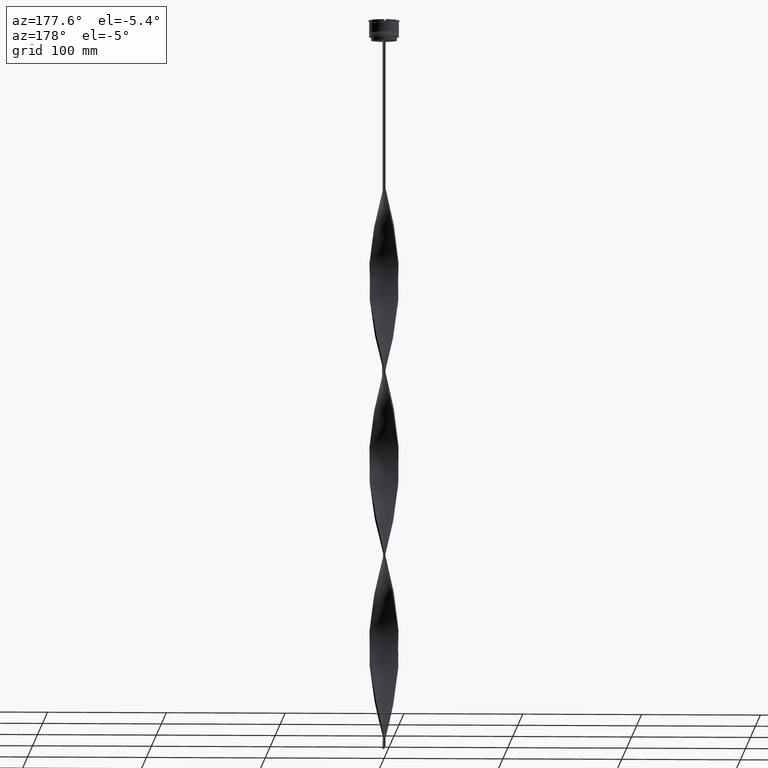
[diagram: clean part render]
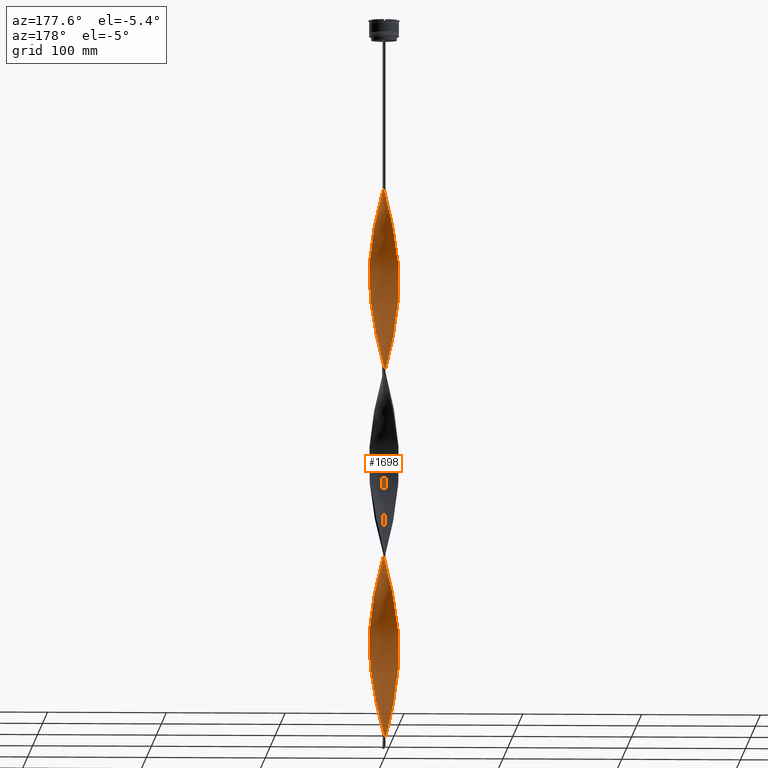
[diagram: same view with one face highlighted and labeled with its STEP entity id]
A machine part, auxiliary view. The second image highlights one B-rep face of the part: STEP entity #1698.
In plain terms, the highlighted face is a freeform B-spline surface patch.
Its self-contained STEP definition (entity closure, byte-faithful):
#8 = CARTESIAN_POINT ( 'NONE',  ( -6.740552907874695521, -10.55355136890620216, -422.6000000000000227 ) ) ;
#15 = CARTESIAN_POINT ( 'NONE',  ( -11.36854588750133388, 5.309366094152151661, -202.0266666666667277 ) ) ;
#16 = CARTESIAN_POINT ( 'NONE',  ( -12.41912662004790313, 1.605550994275040999, -366.6800000000000068 ) ) ;
#23 = CARTESIAN_POINT ( 'NONE',  ( -12.11996919947063134, -3.149420042465479241, -236.2000000000000171 ) ) ;
#35 = CARTESIAN_POINT ( 'NONE',  ( -9.644549487540052368, 8.025949731984795221, -338.7200000000000273 ) ) ;
#45 = CARTESIAN_POINT ( 'NONE',  ( 12.31811391348432316, -2.386896213156298963, -518.9066666666665242 ) ) ;
#48 = CARTESIAN_POINT ( 'NONE',  ( -5.298889272974661502, -11.34611265908963595, -279.6933333333333280 ) ) ;
#57 = CARTESIAN_POINT ( 'NONE',  ( -12.42824121570641083, -1.533401540437625332, -379.1066666666666833 ) ) ;
#63 = CARTESIAN_POINT ( 'NONE',  ( 12.41912662004790313, 1.605550994275047660, -385.3199999999999932 ) ) ;
#64 = CARTESIAN_POINT ( 'NONE',  ( 0.03643334067061888837, 12.54718600044023979, -605.8933333333335440 ) ) ;
#70 = CARTESIAN_POINT ( 'NONE',  ( 4.585052370405608535, 11.67949051451277320, -438.1333333333334394 ) ) ;
#83 = CARTESIAN_POINT ( 'NONE',  ( -1.536433340670619652, -12.45281399955976553, -295.2266666666667447 ) ) ;
#84 = CARTESIAN_POINT ( 'NONE',  ( 7.954078399437126023, -9.671873490467488566, -484.7333333333333485 ) ) ;
#93 = CARTESIAN_POINT ( 'NONE',  ( 10.57441756647771136, 6.753880147568771086, -407.0666666666666629 ) ) ;
#96 = ORIENTED_EDGE ( 'NONE', *, *, #934, .F. ) ;
#113 = CARTESIAN_POINT ( 'NONE',  ( 8.010112353542551134, -9.625518172214162504, -335.6133333333334008 ) ) ;
#115 = CARTESIAN_POINT ( 'NONE',  ( -0.7500000000000042188, 12.50000000000000000, -609.0000000000000000 ) ) ;
#123 = CARTESIAN_POINT ( 'NONE',  ( 1.536433340670621206, 12.45281399955976553, -450.5600000000000023 ) ) ;
#136 = CARTESIAN_POINT ( 'NONE',  ( 9.690996458280338288, 7.969804989054245503, -562.4000000000000909 ) ) ;
#141 = CARTESIAN_POINT ( 'NONE',  ( 6.076579735155671180, -10.97763101221075743, -326.2933333333333508 ) ) ;
#142 = CARTESIAN_POINT ( 'NONE',  ( 11.92182448545694129, -3.911943871774654635, -512.6933333333333849 ) ) ;
#148 = CARTESIAN_POINT ( 'NONE',  ( -3.904224544142286035, 11.89829948811665083, -472.3066666666667288 ) ) ;
#163 = CARTESIAN_POINT ( 'NONE',  ( -12.52471466338928074, 0.7514828798033548196, -531.3333333333335986 ) ) ;
#171 = CARTESIAN_POINT ( 'NONE',  ( 12.11996919947063311, 3.149420042465475245, -391.5333333333334167 ) ) ;
#184 = CARTESIAN_POINT ( 'NONE',  ( 11.36854588750133388, 5.309366094152153437, -549.9733333333334713 ) ) ;
#192 = CARTESIAN_POINT ( 'NONE',  ( -7.345575697064968601, -10.17230168627752107, -581.0400000000000773 ) ) ;
#201 = CARTESIAN_POINT ( 'NONE',  ( 7.954078399437126023, -9.671873490467488566, -174.0666666666666629 ) ) ;
#214 = CARTESIAN_POINT ( 'NONE',  ( 4.585052370405608535, 11.67949051451277320, -438.1333333333334394 ) ) ;
#215 = CARTESIAN_POINT ( 'NONE',  ( 9.103565294674670128, -8.598697513321127417, -180.2800000000000296 ) ) ;
#219 = CARTESIAN_POINT ( 'NONE',  ( 9.103565294674670128, -8.598697513321127417, -180.2800000000000296 ) ) ;
#232 = CARTESIAN_POINT ( 'NONE',  ( -5.364690916238543217, 11.31514875612458226, -478.5200000000000387 ) ) ;
#233 = CARTESIAN_POINT ( 'NONE',  ( 10.10948352700888542, -7.389914939776779157, -186.4933333333333394 ) ) ;
#238 = CARTESIAN_POINT ( 'NONE',  ( 11.62967262449904915, -4.643620855213893783, -198.9200000000000159 ) ) ;
#257 = CARTESIAN_POINT ( 'NONE',  ( 1.536433340670622316, -12.45281399955976553, -146.1066666666667118 ) ) ;
#266 = CARTESIAN_POINT ( 'NONE',  ( -8.562581101809282558, -9.171445294657461389, -574.8266666666665969 ) ) ;
#293 = CARTESIAN_POINT ( 'NONE',  ( 10.95596916500943863, -6.064588993110946014, -192.7066666666667061 ) ) ;
#297 = DIRECTION ( 'NONE',  ( 0.000000000000000000, 1.000000000000000000, 0.000000000000000000 ) ) ;
#305 = CARTESIAN_POINT ( 'NONE',  ( 12.42824121570641083, 1.533401540437621557, -223.7733333333333405 ) ) ;
#314 = CARTESIAN_POINT ( 'NONE',  ( -3.835060960407161712, 11.92077209873424870, -310.7600000000000477 ) ) ;
#319 = CARTESIAN_POINT ( 'NONE',  ( 2.382186218714214210, -12.29380692948152820, -310.7600000000000477 ) ) ;
#329 = CARTESIAN_POINT ( 'NONE',  ( -11.65644370790820972, -4.576004816908206152, -391.5333333333334167 ) ) ;
#337 = CARTESIAN_POINT ( 'NONE',  ( -5.364690916238543217, 11.31514875612458226, -167.8533333333333530 ) ) ;
#340 = CARTESIAN_POINT ( 'NONE',  ( -3.155646990963147935, -12.14393247619489813, -438.1333333333334394 ) ) ;
#346 = CARTESIAN_POINT ( 'NONE',  ( 5.364690916238544105, -11.31514875612458226, -323.1866666666667243 ) ) ;
#357 = CARTESIAN_POINT ( 'NONE',  ( 0.8225793935679426294, 12.49543369160420347, -292.1200000000000614 ) ) ;
#364 = CARTESIAN_POINT ( 'NONE',  ( 0.8225793935679426294, 12.49543369160420347, -292.1200000000000614 ) ) ;
#370 = CARTESIAN_POINT ( 'NONE',  ( -10.57441756647771847, -6.753880147568761316, -251.7333333333334338 ) ) ;
#380 = CARTESIAN_POINT ( 'NONE',  ( -9.103565294674670128, 8.598697513321127417, -335.6133333333334008 ) ) ;
#385 = CARTESIAN_POINT ( 'NONE',  ( -8.010112353542551134, 9.625518172214162504, -180.2800000000000296 ) ) ;
#386 = CARTESIAN_POINT ( 'NONE',  ( -8.562581101809289663, 9.171445294657457836, -332.5066666666668311 ) ) ;
#401 = CARTESIAN_POINT ( 'NONE',  ( -6.679150936304340647, 10.59251824497200900, -323.1866666666667243 ) ) ;
#409 = CARTESIAN_POINT ( 'NONE',  ( -2.382186218714211545, 12.29380692948152820, -155.4266666666666765 ) ) ;
#410 = CARTESIAN_POINT ( 'NONE',  ( -2.310751445539662274, 12.30743384125774575, -304.5466666666666811 ) ) ;
#417 = CARTESIAN_POINT ( 'NONE',  ( -2.382186218714211545, 12.29380692948152820, -155.4266666666666765 ) ) ;
#429 = CARTESIAN_POINT ( 'NONE',  ( 0.03643334067061888837, 12.54718600044023979, -295.2266666666667447 ) ) ;
#437 = CARTESIAN_POINT ( 'NONE',  ( 3.155646990963159482, -12.14393247619489813, -313.8666666666666742 ) ) ;
#438 = CARTESIAN_POINT ( 'NONE',  ( 3.155646990963152376, 12.14393247619489813, -593.4666666666666970 ) ) ;
#445 = CARTESIAN_POINT ( 'NONE',  ( 5.298889272974663278, 11.34611265908963595, -435.0266666666667561 ) ) ;
#453 = CARTESIAN_POINT ( 'NONE',  ( 12.13805464816931412, 3.078981870368077356, -540.6533333333334213 ) ) ;
#456 = B_SPLINE_CURVE_WITH_KNOTS ( 'NONE', 3,
 ( #478, #504, #4222, #2270 ),
 .UNSPECIFIED., .F., .F.,
 ( 4, 4 ),
 ( 0.000000000000000000, 1.000000000000000000 ),
 .UNSPECIFIED. ) ;
#461 = CARTESIAN_POINT ( 'NONE',  ( -7.345575697064968601, -10.17230168627752107, -270.3733333333333348 ) ) ;
#470 = CARTESIAN_POINT ( 'NONE',  ( 11.62967262449904915, 4.643620855213893783, -397.7466666666666697 ) ) ;
#478 = CARTESIAN_POINT ( 'NONE',  ( -0.7499999999999962252, -12.50000000000000000, -609.0000000000000000 ) ) ;
#479 = CARTESIAN_POINT ( 'NONE',  ( 11.94434152831508911, 3.842643539664265084, -543.7599999999999909 ) ) ;
#484 = CARTESIAN_POINT ( 'NONE',  ( -9.103565294674666575, -8.598697513321130970, -261.0533333333333417 ) ) ;
#485 = CARTESIAN_POINT ( 'NONE',  ( 5.364690916238542329, 11.31514875612458226, -584.1466666666666470 ) ) ;
#492 = CARTESIAN_POINT ( 'NONE',  ( 11.33752076354115523, 5.375297838653137816, -400.8533333333334099 ) ) ;
#504 = CARTESIAN_POINT ( 'NONE',  ( -0.7499999999999988898, -4.166666666666667851, -609.0000000000000000 ) ) ;
#505 = CARTESIAN_POINT ( 'NONE',  ( 12.33176776802354446, 2.315320201071887407, -537.5466666666667379 ) ) ;
#511 = CARTESIAN_POINT ( 'NONE',  ( -11.92182448545694129, -3.911943871774655967, -239.3066666666667288 ) ) ;
#513 = CARTESIAN_POINT ( 'NONE',  ( 2.382186218714211989, 12.29380692948152820, -596.5733333333333803 ) ) ;
#519 = CARTESIAN_POINT ( 'NONE',  ( 0.7500000000000002220, 12.50000000000000000, -453.6666666666667425 ) ) ;
#530 = CARTESIAN_POINT ( 'NONE',  ( 10.95596916500943863, -6.064588993110946014, -503.3733333333334485 ) ) ;
#536 = CARTESIAN_POINT ( 'NONE',  ( -9.644549487540050592, -8.025949731984796998, -257.9466666666666583 ) ) ;
#537 = CARTESIAN_POINT ( 'NONE',  ( 9.153347542385848357, 8.545684803940464036, -565.5066666666666606 ) ) ;
#542 = CARTESIAN_POINT ( 'NONE',  ( 11.94434152831509088, -3.842643539664260199, -363.5733333333334372 ) ) ;
#552 = CARTESIAN_POINT ( 'NONE',  ( 11.33752076354116056, -5.375297838653129823, -506.4800000000001319 ) ) ;
#559 = CARTESIAN_POINT ( 'NONE',  ( -12.31811391348432316, -2.386896213156300295, -543.7599999999999909 ) ) ;
#564 = CARTESIAN_POINT ( 'NONE',  ( 6.012726175543713580, -11.01273480366649871, -164.7466666666667265 ) ) ;
#581 = CARTESIAN_POINT ( 'NONE',  ( -10.95596916500943685, -6.064588993110949566, -559.2933333333334076 ) ) ;
#583 = CARTESIAN_POINT ( 'NONE',  ( 3.085069550408702010, -12.16205368295573130, -152.3200000000000500 ) ) ;
#591 = CARTESIAN_POINT ( 'NONE',  ( -2.310751445539660054, -12.30743384125774575, -602.7866666666667470 ) ) ;
#603 = CARTESIAN_POINT ( 'NONE',  ( -12.52013932661148310, -0.8242057753937852560, -537.5466666666667379 ) ) ;
#605 = CARTESIAN_POINT ( 'NONE',  ( 12.52471466338928074, 0.7514828798033589274, -220.6666666666667140 ) ) ;
#611 = CARTESIAN_POINT ( 'NONE',  ( -11.62967262449904915, -4.643620855213893783, -553.0800000000000409 ) ) ;
#625 = CARTESIAN_POINT ( 'NONE',  ( -1.536433340670619652, -12.45281399955976553, -605.8933333333335440 ) ) ;
#634 = CARTESIAN_POINT ( 'NONE',  ( 9.690996458280338288, 7.969804989054246391, -251.7333333333334338 ) ) ;
#651 = CARTESIAN_POINT ( 'NONE',  ( -10.15222897254094114, 7.331080881363969404, -503.3733333333334485 ) ) ;
#661 = CARTESIAN_POINT ( 'NONE',  ( -12.11996919947063134, -3.149420042465479241, -546.8666666666666742 ) ) ;
#673 = EDGE_CURVE ( 'NONE', #4452, #4715, #3626, .T. ) ;
#682 = CARTESIAN_POINT ( 'NONE',  ( 12.52242699500038015, -0.03636144779521242182, -217.5600000000000307 ) ) ;
#687 = CARTESIAN_POINT ( 'NONE',  ( -9.153347542385848357, 8.545684803940464036, -186.4933333333333394 ) ) ;
#688 = CARTESIAN_POINT ( 'NONE',  ( -9.153347542385844804, -8.545684803940465812, -410.1733333333334031 ) ) ;
#693 = CARTESIAN_POINT ( 'NONE',  ( -0.8225793935679445168, 12.49543369160420347, -149.2133333333333383 ) ) ;
#707 = CARTESIAN_POINT ( 'NONE',  ( -8.562581101809287887, 9.171445294657457836, -332.5066666666667743 ) ) ;
#715 = CARTESIAN_POINT ( 'NONE',  ( -4.585052370405619193, 11.67949051451277143, -313.8666666666666742 ) ) ;
#720 = CARTESIAN_POINT ( 'NONE',  ( -11.33752076354115701, -5.375297838653134264, -245.5200000000000387 ) ) ;
#732 = CARTESIAN_POINT ( 'NONE',  ( 6.076579735155670292, 10.97763101221075743, -270.3733333333333348 ) ) ;
#741 = CARTESIAN_POINT ( 'NONE',  ( 6.076579735155669404, 10.97763101221075921, -270.3733333333333348 ) ) ;
#747 = CARTESIAN_POINT ( 'NONE',  ( -6.076579735155669404, 10.97763101221075921, -170.9600000000000080 ) ) ;
#759 = CARTESIAN_POINT ( 'NONE',  ( -3.904224544142285147, -11.89829948811665261, -435.0266666666667561 ) ) ;
#760 = CARTESIAN_POINT ( 'NONE',  ( 0.7500000000000002220, -12.50000000000000000, -143.0000000000000284 ) ) ;
#763 = CARTESIAN_POINT ( 'NONE',  ( -3.155646990963155485, 12.14393247619489813, -158.5333333333333883 ) ) ;
#764 = CARTESIAN_POINT ( 'NONE',  ( -11.33752076354115879, 5.375297838653132487, -351.1466666666667606 ) ) ;
#770 = CARTESIAN_POINT ( 'NONE',  ( -5.364690916238543217, 11.31514875612458226, -167.8533333333333530 ) ) ;
#778 = CARTESIAN_POINT ( 'NONE',  ( 0.7500000000000002220, 12.50000000000000000, -143.0000000000000284 ) ) ;
#780 = CARTESIAN_POINT ( 'NONE',  ( -1.608725446465268050, -12.44368138276816538, -444.3466666666668061 ) ) ;
#787 = CARTESIAN_POINT ( 'NONE',  ( -12.11996919947063134, 3.149420042465479241, -360.4666666666666970 ) ) ;
#793 = CARTESIAN_POINT ( 'NONE',  ( -3.904224544142286035, 11.89829948811665083, -161.6400000000000148 ) ) ;
#802 = CARTESIAN_POINT ( 'NONE',  ( -6.012726175543711804, 11.01273480366649871, -320.0800000000000978 ) ) ;
#809 = CARTESIAN_POINT ( 'NONE',  ( 10.10948352700888186, 7.389914939776782710, -410.1733333333334031 ) ) ;
#810 = CARTESIAN_POINT ( 'NONE',  ( 12.13805464816931412, 3.078981870368077356, -540.6533333333334213 ) ) ;
#818 = CARTESIAN_POINT ( 'NONE',  ( 6.740552907874707067, -10.55355136890619683, -329.4000000000000341 ) ) ;
#828 = CARTESIAN_POINT ( 'NONE',  ( 0.8225793935679426294, 12.49543369160420347, -602.7866666666667470 ) ) ;
#836 = CARTESIAN_POINT ( 'NONE',  ( -12.41912662004790313, -1.605550994275043664, -229.9866666666666788 ) ) ;
#837 = CARTESIAN_POINT ( 'NONE',  ( 9.644549487540052368, -8.025949731984795221, -494.0533333333333985 ) ) ;
#844 = CARTESIAN_POINT ( 'NONE',  ( 2.310751445539656057, 12.30743384125774753, -447.4533333333333758 ) ) ;
#854 = CARTESIAN_POINT ( 'NONE',  ( 1.536433340670622316, -12.45281399955976553, -456.7733333333334258 ) ) ;
#859 = CARTESIAN_POINT ( 'NONE',  ( -6.012726175543710028, -11.01273480366650048, -276.5866666666667584 ) ) ;
#865 = CARTESIAN_POINT ( 'NONE',  ( 12.13805464816931767, -3.078981870368074691, -366.6800000000000068 ) ) ;
#880 = CARTESIAN_POINT ( 'NONE',  ( 1.608725446465269382, -12.44368138276816360, -307.6533333333333644 ) ) ;
#881 = CARTESIAN_POINT ( 'NONE',  ( 9.690996458280338288, 7.969804989054246391, -562.4000000000000909 ) ) ;
#887 = CARTESIAN_POINT ( 'NONE',  ( 12.33176776802354802, -2.315320201071879858, -369.7866666666666333 ) ) ;
#900 = CARTESIAN_POINT ( 'NONE',  ( 11.62967262449904915, -4.643620855213893783, -509.5866666666666447 ) ) ;
#906 = CARTESIAN_POINT ( 'NONE',  ( 3.904224544142290032, -11.89829948811664906, -316.9733333333333576 ) ) ;
#908 = CARTESIAN_POINT ( 'NONE',  ( 6.012726175543713580, -11.01273480366649871, -475.4133333333333553 ) ) ;
#915 = CARTESIAN_POINT ( 'NONE',  ( -11.36854588750133388, 5.309366094152151661, -512.6933333333333849 ) ) ;
#926 = CARTESIAN_POINT ( 'NONE',  ( 5.298889272974663278, -11.34611265908963418, -472.3066666666667288 ) ) ;
#931 = CARTESIAN_POINT ( 'NONE',  ( -10.61346148680155288, 6.692356773673692416, -506.4800000000001319 ) ) ;
#934 = EDGE_CURVE ( 'NONE', #4715, #3259, #456, .T. ) ;
#938 = CARTESIAN_POINT ( 'NONE',  ( 12.11996919947063134, -3.149420042465478353, -205.1333333333333542 ) ) ;
#953 = CARTESIAN_POINT ( 'NONE',  ( -8.615698626491365530, 9.121564618826681681, -494.0533333333333985 ) ) ;
#959 = CARTESIAN_POINT ( 'NONE',  ( -11.33752076354115701, -5.375297838653134264, -556.1866666666668380 ) ) ;
#976 = CARTESIAN_POINT ( 'NONE',  ( -8.562581101809280781, -9.171445294657461389, -574.8266666666667106 ) ) ;
#979 = CARTESIAN_POINT ( 'NONE',  ( 10.57441756647771847, -6.753880147568761316, -189.6000000000000227 ) ) ;
#987 = CARTESIAN_POINT ( 'NONE',  ( 11.33752076354116056, -5.375297838653129823, -195.8133333333333610 ) ) ;
#1001 = CARTESIAN_POINT ( 'NONE',  ( -2.310751445539660054, -12.30743384125774575, -602.7866666666667470 ) ) ;
#1009 = CARTESIAN_POINT ( 'NONE',  ( 12.52013932661148665, -0.8242057753937837017, -214.4533333333333758 ) ) ;
#1020 = CARTESIAN_POINT ( 'NONE',  ( 6.679150936304339758, 10.59251824497200900, -428.8133333333333894 ) ) ;
#1029 = CARTESIAN_POINT ( 'NONE',  ( -12.52013932661148488, -0.8242057753937852560, -537.5466666666667379 ) ) ;
#1048 = CARTESIAN_POINT ( 'NONE',  ( 12.52013932661148488, -0.8242057753937837017, -214.4533333333333758 ) ) ;
#1057 = CARTESIAN_POINT ( 'NONE',  ( -5.298889272974667719, 11.34611265908963240, -316.9733333333333576 ) ) ;
#1073 = CARTESIAN_POINT ( 'NONE',  ( -1.536433340670622094, 12.45281399955976553, -301.4400000000000546 ) ) ;
#1080 = CARTESIAN_POINT ( 'NONE',  ( -10.10948352700888542, 7.389914939776777381, -341.8266666666667106 ) ) ;
#1084 = CARTESIAN_POINT ( 'NONE',  ( -10.95596916500943685, -6.064588993110949566, -248.6266666666666936 ) ) ;
#1093 = CARTESIAN_POINT ( 'NONE',  ( -9.690996458280331183, -7.969804989054253497, -407.0666666666666629 ) ) ;
#1097 = CARTESIAN_POINT ( 'NONE',  ( -6.740552907874703514, 10.55355136890620038, -174.0666666666666629 ) ) ;
#1098 = CARTESIAN_POINT ( 'NONE',  ( -0.03643334067062039411, -12.54718600044023979, -450.5600000000000023 ) ) ;
#1103 = CARTESIAN_POINT ( 'NONE',  ( -11.65644370790820794, 4.576004816908208817, -205.1333333333333542 ) ) ;
#1117 = CARTESIAN_POINT ( 'NONE',  ( -2.310751445539662274, 12.30743384125774575, -304.5466666666666811 ) ) ;
#1125 = CARTESIAN_POINT ( 'NONE',  ( 4.652802097321414365, 11.65266650003840887, -276.5866666666667584 ) ) ;
#1131 = CARTESIAN_POINT ( 'NONE',  ( -9.103565294674666575, -8.598697513321130970, -261.0533333333333417 ) ) ;
#1144 = CARTESIAN_POINT ( 'NONE',  ( -2.382186218714207548, -12.29380692948152998, -441.2400000000000091 ) ) ;
#1153 = CARTESIAN_POINT ( 'NONE',  ( -12.52471466338928074, -0.7514828798033545976, -376.0000000000000568 ) ) ;
#1159 = CARTESIAN_POINT ( 'NONE',  ( -8.562581101809282558, -9.171445294657461389, -264.1600000000000819 ) ) ;
#1167 = CARTESIAN_POINT ( 'NONE',  ( -12.52013932661148488, 0.8242057753937772624, -369.7866666666666902 ) ) ;
#1173 = CARTESIAN_POINT ( 'NONE',  ( -6.679150936304338870, -10.59251824497200900, -273.4800000000000750 ) ) ;
#1174 = CARTESIAN_POINT ( 'NONE',  ( 10.99100368715144072, 6.000861433912924703, -553.0800000000000409 ) ) ;
#1181 = CARTESIAN_POINT ( 'NONE',  ( 0.8225793935679449609, -12.49543369160420347, -304.5466666666666811 ) ) ;
#1190 = CARTESIAN_POINT ( 'NONE',  ( 4.585052370405615640, -11.67949051451277143, -469.2000000000001023 ) ) ;
#1197 = CARTESIAN_POINT ( 'NONE',  ( -0.7499999999999962252, -12.50000000000000000, -298.3333333333333144 ) ) ;
#1198 = CARTESIAN_POINT ( 'NONE',  ( 1.608725446465266717, 12.44368138276816538, -599.6799999999999500 ) ) ;
#1206 = CARTESIAN_POINT ( 'NONE',  ( 3.085069550408702455, 12.16205368295573130, -444.3466666666667493 ) ) ;
#1224 = CARTESIAN_POINT ( 'NONE',  ( 10.99100368715144427, -6.000861433912917597, -354.2533333333333871 ) ) ;
#1230 = CARTESIAN_POINT ( 'NONE',  ( 8.562581101809284334, 9.171445294657461389, -419.4933333333333394 ) ) ;
#1239 = EDGE_CURVE ( 'NONE', #2189, #3259, #1409, .T. ) ;
#1240 = CARTESIAN_POINT ( 'NONE',  ( 12.52471466338928074, 0.7514828798033589274, -531.3333333333335986 ) ) ;
#1246 = CARTESIAN_POINT ( 'NONE',  ( 12.52013932661148488, 0.8242057753937834796, -382.2133333333334235 ) ) ;
#1252 = CARTESIAN_POINT ( 'NONE',  ( -5.364690916238543217, 11.31514875612458226, -478.5200000000000387 ) ) ;
#1265 = CARTESIAN_POINT ( 'NONE',  ( -10.95596916500943685, -6.064588993110949566, -248.6266666666666936 ) ) ;
#1266 = CARTESIAN_POINT ( 'NONE',  ( 8.562581101809286110, -9.171445294657459613, -487.8400000000000887 ) ) ;
#1273 = CARTESIAN_POINT ( 'NONE',  ( -9.690996458280338288, 7.969804989054246391, -500.2666666666666515 ) ) ;
#1287 = CARTESIAN_POINT ( 'NONE',  ( 3.835060960407158603, -11.92077209873424870, -466.0933333333333621 ) ) ;
#1293 = CARTESIAN_POINT ( 'NONE',  ( -12.11996919947063134, -3.149420042465479241, -546.8666666666666742 ) ) ;
#1301 = CARTESIAN_POINT ( 'NONE',  ( -10.15222897254094114, 7.331080881363969404, -503.3733333333334485 ) ) ;
#1316 = CARTESIAN_POINT ( 'NONE',  ( -11.62967262449904915, -4.643620855213893783, -553.0800000000000409 ) ) ;
#1321 = EDGE_LOOP ( 'NONE', ( #3045, #1458, #96, #2017 ) ) ;
#1322 = CARTESIAN_POINT ( 'NONE',  ( -3.085069550408701122, -12.16205368295573130, -599.6799999999999500 ) ) ;
#1336 = CARTESIAN_POINT ( 'NONE',  ( -9.644549487540050592, -8.025949731984796998, -568.6133333333334576 ) ) ;
#1337 = CARTESIAN_POINT ( 'NONE',  ( 9.644549487540052368, -8.025949731984795221, -183.3866666666666845 ) ) ;
#1342 = CARTESIAN_POINT ( 'NONE',  ( -6.012726175543710916, -11.01273480366650048, -587.2533333333335577 ) ) ;
#1359 = CARTESIAN_POINT ( 'NONE',  ( -3.835060960407159047, -11.92077209873424870, -596.5733333333333803 ) ) ;
#1367 = CARTESIAN_POINT ( 'NONE',  ( 10.99100368715144072, 6.000861433912924703, -242.4133333333333553 ) ) ;
#1381 = CARTESIAN_POINT ( 'NONE',  ( -3.904224544142286035, 11.89829948811665083, -472.3066666666667288 ) ) ;
#1383 = CARTESIAN_POINT ( 'NONE',  ( 12.33176776802354446, 2.315320201071887407, -226.8800000000000523 ) ) ;
#1391 = CARTESIAN_POINT ( 'NONE',  ( 11.65644370790820794, 4.576004816908210593, -236.2000000000000171 ) ) ;
#1409 =( BOUNDED_CURVE ( )  B_SPLINE_CURVE ( 2, ( #3639, #257, #3957, #583, #4710, #2924, #3278, #3225, #4344, #4760, #1800, #2461, #215, #1337, #233, #979, #2486, #4414, #2100, #1731, #3979, #3596, #3249, #1048, #682, #605, #305, #1383, #2902, #4804, #4387, #2525, #4021, #2151, #1434, #4075, #3756, #1925, #1554, #3777, #2576, #732, #2223, #1827, #3730, #1851, #1482, #3420, #357, #429, #4173, #1073, #1117, #3443, #3395, #4442, #1507, #802, #401, #4535, #1897, #707, #380, #35, #2197, #3000, #4098, #2650, #4464, #1532, #3048, #3351, #3803, #1167, #2673, #2296, #57, #3707, #3374, #1874, #329, #4485, #4833, #1461, #4852, #1093, #2979, #4126, #2623, #2600, #8, #4510, #2250, #3024, #759, #4148, #1144, #780, #2271, #1609, #1577, #854, #2020, #1653, #1287, #1190, #926, #2328, #3927, #2803, #2352, #3124, #4294, #2431, #3856, #2729, #530, #552, #900, #2775, #3167, #4269, #2042, #4608, #1631, #1240, #3562, #505, #453, #479, #2751, #184, #3830, #1972, #3145, #136, #4658, #2407, #2377, #3069, #1948, #4557, #3521, #2699, #3465, #4196, #3904, #4224, #828, #3494, #3880 ),
 .UNSPECIFIED., .F., .T. ) 
 B_SPLINE_CURVE_WITH_KNOTS ( ( 3, 2, 2, 2, 2, 2, 2, 2, 2, 2, 2, 2, 2, 2, 2, 2, 2, 2, 2, 2, 2, 2, 2, 2, 2, 2, 2, 2, 2, 2, 2, 2, 2, 2, 2, 2, 2, 2, 2, 2, 2, 2, 2, 2, 2, 2, 2, 2, 2, 2, 2, 2, 2, 2, 2, 2, 2, 2, 2, 2, 2, 2, 2, 2, 2, 2, 2, 2, 2, 2, 2, 2, 2, 2, 2, 3 ),
 ( 0.000000000000000000, 0.01000000000000000021, 0.02000000000000000042, 0.02999999999999999889, 0.04000000000000000083, 0.05000000000000000971, 0.05999999999999999778, 0.07000000000000000666, 0.08000000000000000167, 0.09000000000000001055, 0.1000000000000000194, 0.1100000000000000006, 0.1199999999999999956, 0.1300000000000000044, 0.1400000000000000133, 0.1499999999999999944, 0.1600000000000000033, 0.1700000000000000122, 0.1800000000000000211, 0.1900000000000000300, 0.2000000000000000389, 0.2099999999999999922, 0.2200000000000000011, 0.2300000000000000100, 0.2399999999999999911, 0.2500000000000000000, 0.2600000000000000089, 0.2700000000000000178, 0.2800000000000000266, 0.2899999999999999800, 0.2999999999999999889, 0.3099999999999999978, 0.3200000000000000067, 0.3300000000000000155, 0.3400000000000000244, 0.3499999999999999223, 0.3600000000000000422, 0.3699999999999999400, 0.3800000000000000600, 0.3899999999999999578, 0.4000000000000000777, 0.4099999999999999756, 0.4199999999999999845, 0.4299999999999999933, 0.4400000000000000022, 0.4500000000000000111, 0.4600000000000000200, 0.4699999999999999734, 0.4799999999999999822, 0.4899999999999999911, 0.5000000000000000000, 0.5100000000000000089, 0.5200000000000000178, 0.5300000000000000266, 0.5400000000000000355, 0.5500000000000000444, 0.5600000000000000533, 0.5699999999999999512, 0.5799999999999999600, 0.5899999999999999689, 0.5999999999999999778, 0.6099999999999999867, 0.6199999999999999956, 0.6300000000000000044, 0.6400000000000000133, 0.6500000000000000222, 0.6600000000000000311, 0.6700000000000000400, 0.6800000000000000488, 0.6899999999999999467, 0.6999999999999998446, 0.7099999999999999645, 0.7200000000000000844, 0.7299999999999999822, 0.7399999999999998801, 0.7500000000000000000 ),
 .UNSPECIFIED. ) 
 CURVE ( )  GEOMETRIC_REPRESENTATION_ITEM ( )  RATIONAL_B_SPLINE_CURVE ( ( 1.000000000000000000, 0.9980267284282715590, 1.000000000000000000, 0.9980267284282715590, 1.000000000000000000, 0.9980267284282715590, 1.000000000000000000, 0.9980267284282715590, 1.000000000000000000, 0.9980267284282715590, 1.000000000000000000, 0.9980267284282715590, 1.000000000000000000, 0.9980267284282715590, 1.000000000000000000, 0.9980267284282715590, 1.000000000000000000, 0.9980267284282715590, 1.000000000000000000, 0.9980267284282715590, 1.000000000000000000, 0.9980267284282715590, 1.000000000000000000, 0.9980267284282715590, 1.000000000000000000, 0.9980267284282715590, 1.000000000000000000, 0.9980267284282715590, 1.000000000000000000, 0.9980267284282715590, 1.000000000000000000, 0.9980267284282715590, 1.000000000000000000, 0.9980267284282715590, 1.000000000000000000, 0.9980267284282715590, 1.000000000000000000, 0.9980267284282715590, 1.000000000000000000, 0.9980267284282715590, 1.000000000000000000, 0.9980267284282715590, 1.000000000000000000, 0.9980267284282715590, 1.000000000000000000, 0.9980267284282715590, 1.000000000000000000, 0.9980267284282715590, 1.000000000000000000, 0.9980267284282715590, 1.000000000000000000, 0.9980267284282715590, 1.000000000000000000, 0.9980267284282715590, 1.000000000000000000, 0.9980267284282715590, 1.000000000000000000, 0.9980267284282715590, 1.000000000000000000, 0.9980267284282715590, 1.000000000000000000, 0.9980267284282715590, 1.000000000000000000, 0.9980267284282715590, 1.000000000000000000, 0.9980267284282715590, 1.000000000000000000, 0.9980267284282715590, 1.000000000000000000, 0.9980267284282715590, 1.000000000000000000, 0.9980267284282715590, 1.000000000000000000, 0.9980267284282715590, 1.000000000000000000, 0.9980267284282715590, 1.000000000000000000, 0.9980267284282715590, 1.000000000000000000, 0.9980267284282715590, 1.000000000000000000, 0.9980267284282715590, 1.000000000000000000, 0.9980267284282715590, 1.000000000000000000, 0.9980267284282715590, 1.000000000000000000, 0.9980267284282715590, 1.000000000000000000, 0.9980267284282715590, 1.000000000000000000, 0.9980267284282715590, 1.000000000000000000, 0.9980267284282715590, 1.000000000000000000, 0.9980267284282715590, 1.000000000000000000, 0.9980267284282715590, 1.000000000000000000, 0.9980267284282715590, 1.000000000000000000, 0.9980267284282715590, 1.000000000000000000, 0.9980267284282715590, 1.000000000000000000, 0.9980267284282715590, 1.000000000000000000, 0.9980267284282715590, 1.000000000000000000, 0.9980267284282715590, 1.000000000000000000, 0.9980267284282715590, 1.000000000000000000, 0.9980267284282715590, 1.000000000000000000, 0.9980267284282715590, 1.000000000000000000, 0.9980267284282715590, 1.000000000000000000, 0.9980267284282715590, 1.000000000000000000, 0.9980267284282715590, 1.000000000000000000, 0.9980267284282715590, 1.000000000000000000, 0.9980267284282715590, 1.000000000000000000, 0.9980267284282715590, 1.000000000000000000, 0.9980267284282715590, 1.000000000000000000, 0.9980267284282715590, 1.000000000000000000, 0.9980267284282715590, 1.000000000000000000, 0.9980267284282715590, 1.000000000000000000, 0.9980267284282715590, 1.000000000000000000, 0.9980267284282715590, 1.000000000000000000, 0.9980267284282715590, 1.000000000000000000, 0.9980267284282715590, 1.000000000000000000, 0.9980267284282715590, 1.000000000000000000, 0.9980267284282715590, 1.000000000000000000, 0.9980267284282715590, 1.000000000000000000 ) ) 
 REPRESENTATION_ITEM ( '' )  );
#1415 = CARTESIAN_POINT ( 'NONE',  ( -9.103565294674670128, 8.598697513321127417, -335.6133333333334008 ) ) ;
#1434 = CARTESIAN_POINT ( 'NONE',  ( 10.15222897254093937, 7.331080881363972068, -248.6266666666666936 ) ) ;
#1441 = CARTESIAN_POINT ( 'NONE',  ( -12.13805464816931767, 3.078981870368073359, -211.3466666666666924 ) ) ;
#1444 = CARTESIAN_POINT ( 'NONE',  ( -10.95596916500943863, 6.064588993110942461, -348.0400000000000205 ) ) ;
#1452 = CARTESIAN_POINT ( 'NONE',  ( 3.904224544142290032, -11.89829948811664906, -316.9733333333333576 ) ) ;
#1458 = ORIENTED_EDGE ( 'NONE', *, *, #1239, .T. ) ;
#1461 = CARTESIAN_POINT ( 'NONE',  ( -10.61346148680154755, -6.692356773673698633, -400.8533333333334099 ) ) ;
#1467 = CARTESIAN_POINT ( 'NONE',  ( -0.8225793935679387436, -12.49543369160420170, -447.4533333333333758 ) ) ;
#1482 = CARTESIAN_POINT ( 'NONE',  ( 2.382186218714211989, 12.29380692948152820, -285.9066666666666947 ) ) ;
#1489 = CARTESIAN_POINT ( 'NONE',  ( -12.33176776802354802, -2.315320201071886075, -382.2133333333333667 ) ) ;
#1494 = CARTESIAN_POINT ( 'NONE',  ( -10.61346148680155466, 6.692356773673692416, -195.8133333333333610 ) ) ;
#1507 = CARTESIAN_POINT ( 'NONE',  ( -5.298889272974667719, 11.34611265908963240, -316.9733333333333576 ) ) ;
#1513 = CARTESIAN_POINT ( 'NONE',  ( -11.65644370790820794, 4.576004816908208817, -205.1333333333333542 ) ) ;
#1515 = CARTESIAN_POINT ( 'NONE',  ( 8.010112353542547581, 9.625518172214162504, -261.0533333333333417 ) ) ;
#1522 = CARTESIAN_POINT ( 'NONE',  ( -3.155646990963155485, 12.14393247619489813, -158.5333333333333883 ) ) ;
#1532 = CARTESIAN_POINT ( 'NONE',  ( -11.92182448545694129, 3.911943871774654191, -357.3600000000000705 ) ) ;
#1538 = CARTESIAN_POINT ( 'NONE',  ( -8.562581101809280781, -9.171445294657461389, -264.1600000000000819 ) ) ;
#1539 = CARTESIAN_POINT ( 'NONE',  ( 6.076579735155669404, 10.97763101221075921, -581.0400000000000773 ) ) ;
#1546 = CARTESIAN_POINT ( 'NONE',  ( -0.7499999999999962252, -12.50000000000000000, -298.3333333333333144 ) ) ;
#1554 = CARTESIAN_POINT ( 'NONE',  ( 8.010112353542547581, 9.625518172214162504, -261.0533333333333417 ) ) ;
#1560 = CARTESIAN_POINT ( 'NONE',  ( 0.8225793935679449609, -12.49543369160420347, -304.5466666666666811 ) ) ;
#1569 = CARTESIAN_POINT ( 'NONE',  ( 12.52013932661148665, 0.8242057753937834796, -382.2133333333333667 ) ) ;
#1577 = CARTESIAN_POINT ( 'NONE',  ( 0.7500000000000002220, -12.50000000000000000, -453.6666666666667425 ) ) ;
#1584 = CARTESIAN_POINT ( 'NONE',  ( 8.615698626491365530, -9.121564618826681681, -338.7200000000000273 ) ) ;
#1585 = CARTESIAN_POINT ( 'NONE',  ( 12.42824121570641083, 1.533401540437621557, -534.4400000000000546 ) ) ;
#1595 = CARTESIAN_POINT ( 'NONE',  ( 11.36854588750133388, -5.309366094152151661, -357.3600000000001273 ) ) ;
#1609 = CARTESIAN_POINT ( 'NONE',  ( -0.03643334067062040105, -12.54718600044023979, -450.5600000000000023 ) ) ;
#1615 = CARTESIAN_POINT ( 'NONE',  ( 12.52471466338928074, -0.7514828798033591495, -376.0000000000000568 ) ) ;
#1616 = CARTESIAN_POINT ( 'NONE',  ( 8.615698626491363754, 9.121564618826683457, -568.6133333333333439 ) ) ;
#1621 = CARTESIAN_POINT ( 'NONE',  ( 12.52242699500038015, 0.03636144779521762599, -379.1066666666666833 ) ) ;
#1631 = CARTESIAN_POINT ( 'NONE',  ( 12.52242699500038015, -0.03636144779521242182, -528.2266666666666879 ) ) ;
#1638 = CARTESIAN_POINT ( 'NONE',  ( 6.740552907874707067, -10.55355136890619683, -329.4000000000000341 ) ) ;
#1639 = CARTESIAN_POINT ( 'NONE',  ( 12.33176776802354624, 2.315320201071887851, -537.5466666666667379 ) ) ;
#1644 = CARTESIAN_POINT ( 'NONE',  ( -6.076579735155669404, 10.97763101221075921, -481.6266666666667788 ) ) ;
#1653 = CARTESIAN_POINT ( 'NONE',  ( 3.085069550408702010, -12.16205368295573130, -462.9866666666667356 ) ) ;
#1659 = CARTESIAN_POINT ( 'NONE',  ( -12.52242699500038015, -0.03636144779521361531, -534.4400000000000546 ) ) ;
#1667 = CARTESIAN_POINT ( 'NONE',  ( 6.679150936304339758, 10.59251824497200900, -428.8133333333333894 ) ) ;
#1687 = CARTESIAN_POINT ( 'NONE',  ( -6.012726175543710028, -11.01273480366650048, -587.2533333333335577 ) ) ;
#1695 = CARTESIAN_POINT ( 'NONE',  ( -12.52471466338928074, 0.7514828798033548196, -531.3333333333334849 ) ) ;
#1698 = ADVANCED_FACE ( 'NONE', ( #4820 ), #4151, .T. ) ;
#1711 = CARTESIAN_POINT ( 'NONE',  ( -4.652802097321417030, 11.65266650003840709, -475.4133333333333553 ) ) ;
#1717 = CARTESIAN_POINT ( 'NONE',  ( 7.345575697064968601, -10.17230168627752107, -170.9600000000000080 ) ) ;
#1730 = CARTESIAN_POINT ( 'NONE',  ( -11.36854588750133388, 5.309366094152151661, -512.6933333333334986 ) ) ;
#1731 = CARTESIAN_POINT ( 'NONE',  ( 11.92182448545694129, -3.911943871774654191, -202.0266666666667277 ) ) ;
#1737 = CARTESIAN_POINT ( 'NONE',  ( -12.52242699500038015, -0.03636144779521361531, -534.4400000000000546 ) ) ;
#1766 = CARTESIAN_POINT ( 'NONE',  ( 11.92182448545694129, -3.911943871774654635, -202.0266666666667277 ) ) ;
#1790 = CARTESIAN_POINT ( 'NONE',  ( 12.13805464816931412, 3.078981870368077356, -229.9866666666666788 ) ) ;
#1800 = CARTESIAN_POINT ( 'NONE',  ( 7.954078399437126023, -9.671873490467488566, -174.0666666666666629 ) ) ;
#1808 = CARTESIAN_POINT ( 'NONE',  ( -11.92182448545694129, 3.911943871774654635, -357.3600000000001273 ) ) ;
#1813 = CARTESIAN_POINT ( 'NONE',  ( -7.404526080593738513, 10.12947172560163800, -177.1733333333333462 ) ) ;
#1827 = CARTESIAN_POINT ( 'NONE',  ( 4.652802097321414365, 11.65266650003840887, -276.5866666666667584 ) ) ;
#1836 = CARTESIAN_POINT ( 'NONE',  ( -2.382186218714207548, -12.29380692948152998, -441.2400000000000091 ) ) ;
#1842 = CARTESIAN_POINT ( 'NONE',  ( -12.13805464816931767, 3.078981870368073359, -211.3466666666666924 ) ) ;
#1851 = CARTESIAN_POINT ( 'NONE',  ( 3.155646990963151932, 12.14393247619489813, -282.8000000000000682 ) ) ;
#1858 = CARTESIAN_POINT ( 'NONE',  ( -6.012726175543712692, 11.01273480366649871, -320.0800000000000978 ) ) ;
#1864 = CARTESIAN_POINT ( 'NONE',  ( -3.085069550408701122, -12.16205368295573130, -289.0133333333333212 ) ) ;
#1874 = CARTESIAN_POINT ( 'NONE',  ( -11.94434152831508911, -3.842643539664265973, -388.4266666666667334 ) ) ;
#1880 = CARTESIAN_POINT ( 'NONE',  ( 2.382186218714211989, 12.29380692948152820, -285.9066666666666947 ) ) ;
#1886 = CARTESIAN_POINT ( 'NONE',  ( -12.52242699500038015, -0.03636144779521361531, -223.7733333333333405 ) ) ;
#1897 = CARTESIAN_POINT ( 'NONE',  ( -7.954078399437128688, 9.671873490467485013, -329.4000000000000341 ) ) ;
#1905 = CARTESIAN_POINT ( 'NONE',  ( -10.61346148680155288, 6.692356773673692416, -195.8133333333333610 ) ) ;
#1907 = CARTESIAN_POINT ( 'NONE',  ( -6.679150936304340647, 10.59251824497200900, -323.1866666666667243 ) ) ;
#1913 = CARTESIAN_POINT ( 'NONE',  ( -10.99100368715144072, 6.000861433912922926, -198.9200000000000159 ) ) ;
#1925 = CARTESIAN_POINT ( 'NONE',  ( 8.615698626491363754, 9.121564618826683457, -257.9466666666666583 ) ) ;
#1931 = CARTESIAN_POINT ( 'NONE',  ( 11.65644370790820794, -4.576004816908210593, -360.4666666666666970 ) ) ;
#1933 = CARTESIAN_POINT ( 'NONE',  ( 12.41912662004790313, -1.605550994275039667, -522.0133333333334349 ) ) ;
#1940 = CARTESIAN_POINT ( 'NONE',  ( 6.076579735155670292, -10.97763101221075743, -326.2933333333333508 ) ) ;
#1948 = CARTESIAN_POINT ( 'NONE',  ( 6.740552907874705291, 10.55355136890619860, -577.9333333333333940 ) ) ;
#1954 = CARTESIAN_POINT ( 'NONE',  ( 9.153347542385848357, -8.545684803940462260, -341.8266666666667106 ) ) ;
#1964 = CARTESIAN_POINT ( 'NONE',  ( 12.41912662004790313, 1.605550994275047660, -385.3199999999999932 ) ) ;
#1972 = CARTESIAN_POINT ( 'NONE',  ( 10.61346148680154933, 6.692356773673695081, -556.1866666666668380 ) ) ;
#1979 = CARTESIAN_POINT ( 'NONE',  ( 12.42824121570641083, -1.533401540437619115, -372.8933333333333735 ) ) ;
#1987 = CARTESIAN_POINT ( 'NONE',  ( 10.61346148680155288, -6.692356773673693304, -351.1466666666667606 ) ) ;
#2002 = CARTESIAN_POINT ( 'NONE',  ( 4.652802097321416142, -11.65266650003840709, -320.0800000000000978 ) ) ;
#2003 = CARTESIAN_POINT ( 'NONE',  ( 0.8225793935679426294, 12.49543369160420347, -602.7866666666667470 ) ) ;
#2008 = CARTESIAN_POINT ( 'NONE',  ( -2.382186218714211545, 12.29380692948152820, -466.0933333333333621 ) ) ;
#2017 = ORIENTED_EDGE ( 'NONE', *, *, #673, .F. ) ;
#2020 = CARTESIAN_POINT ( 'NONE',  ( 2.310751445539661830, -12.30743384125774575, -459.8799999999999955 ) ) ;
#2026 = CARTESIAN_POINT ( 'NONE',  ( 11.33752076354115523, 5.375297838653137816, -400.8533333333334099 ) ) ;
#2027 = CARTESIAN_POINT ( 'NONE',  ( 6.740552907874705291, 10.55355136890619860, -577.9333333333333940 ) ) ;
#2032 = CARTESIAN_POINT ( 'NONE',  ( 12.52471466338928074, -0.7514828798033591495, -376.0000000000000568 ) ) ;
#2042 = CARTESIAN_POINT ( 'NONE',  ( 12.41912662004790313, -1.605550994275039667, -522.0133333333334349 ) ) ;
#2049 = CARTESIAN_POINT ( 'NONE',  ( -7.954078399437126912, -9.671873490467486789, -577.9333333333333940 ) ) ;
#2058 = CARTESIAN_POINT ( 'NONE',  ( -3.835060960407159047, -11.92077209873424870, -596.5733333333333803 ) ) ;
#2078 = CARTESIAN_POINT ( 'NONE',  ( -4.585052370405612088, -11.67949051451277143, -593.4666666666666970 ) ) ;
#2086 = CARTESIAN_POINT ( 'NONE',  ( 8.562581101809286110, -9.171445294657459613, -177.1733333333333462 ) ) ;
#2099 = CARTESIAN_POINT ( 'NONE',  ( -11.65644370790820794, 4.576004816908208817, -515.8000000000000682 ) ) ;
#2100 = CARTESIAN_POINT ( 'NONE',  ( 11.62967262449904915, -4.643620855213893783, -198.9200000000000159 ) ) ;
#2107 = CARTESIAN_POINT ( 'NONE',  ( -12.33176776802354802, 2.315320201071886519, -525.1200000000001182 ) ) ;
#2121 = CARTESIAN_POINT ( 'NONE',  ( -0.7499999999999962252, -12.50000000000000000, -609.0000000000000000 ) ) ;
#2129 = CARTESIAN_POINT ( 'NONE',  ( 2.310751445539661830, -12.30743384125774575, -149.2133333333333383 ) ) ;
#2137 = CARTESIAN_POINT ( 'NONE',  ( 0.7500000000000002220, -12.50000000000000000, -143.0000000000000284 ) ) ;
#2150 = CARTESIAN_POINT ( 'NONE',  ( -11.94434152831508911, 3.842643539664264196, -518.9066666666666379 ) ) ;
#2151 = CARTESIAN_POINT ( 'NONE',  ( 10.61346148680154933, 6.692356773673695081, -245.5200000000000387 ) ) ;
#2161 = CARTESIAN_POINT ( 'NONE',  ( 4.585052370405616529, -11.67949051451277143, -158.5333333333333883 ) ) ;
#2166 = LINE ( 'NONE', #2137, #3799 ) ;
#2182 = CARTESIAN_POINT ( 'NONE',  ( -1.608725446465267606, 12.44368138276816538, -152.3200000000000500 ) ) ;
#2184 = CARTESIAN_POINT ( 'NONE',  ( -8.615698626491365530, -9.121564618826681681, -413.2800000000000864 ) ) ;
#2187 = CARTESIAN_POINT ( 'NONE',  ( -9.690996458280338288, 7.969804989054246391, -189.6000000000000227 ) ) ;
#2189 = VERTEX_POINT ( 'NONE', #760 ) ;
#2197 = CARTESIAN_POINT ( 'NONE',  ( -10.10948352700888542, 7.389914939776777381, -341.8266666666667106 ) ) ;
#2205 = CARTESIAN_POINT ( 'NONE',  ( -12.42824121570641083, -1.533401540437625332, -379.1066666666666833 ) ) ;
#2211 = CARTESIAN_POINT ( 'NONE',  ( 4.652802097321416142, -11.65266650003840709, -320.0800000000000978 ) ) ;
#2223 = CARTESIAN_POINT ( 'NONE',  ( 5.364690916238542329, 11.31514875612458226, -273.4800000000000750 ) ) ;
#2231 = CARTESIAN_POINT ( 'NONE',  ( -6.076579735155670292, 10.97763101221075743, -170.9600000000000364 ) ) ;
#2233 = CARTESIAN_POINT ( 'NONE',  ( 5.364690916238542329, 11.31514875612458226, -273.4800000000000750 ) ) ;
#2241 = CARTESIAN_POINT ( 'NONE',  ( -12.31811391348432316, -2.386896213156299851, -233.0933333333333906 ) ) ;
#2250 = CARTESIAN_POINT ( 'NONE',  ( -5.364690916238543217, -11.31514875612458226, -428.8133333333333894 ) ) ;
#2256 = CARTESIAN_POINT ( 'NONE',  ( -11.62967262449905270, 4.643620855213886678, -354.2533333333333871 ) ) ;
#2262 = CARTESIAN_POINT ( 'NONE',  ( -9.153347542385848357, 8.545684803940464036, -186.4933333333333394 ) ) ;
#2270 = CARTESIAN_POINT ( 'NONE',  ( -0.7500000000000042188, 12.50000000000000000, -609.0000000000000000 ) ) ;
#2271 = CARTESIAN_POINT ( 'NONE',  ( -0.8225793935679387436, -12.49543369160420170, -447.4533333333333758 ) ) ;
#2277 = CARTESIAN_POINT ( 'NONE',  ( -4.652802097321417030, 11.65266650003840709, -164.7466666666666981 ) ) ;
#2278 = CARTESIAN_POINT ( 'NONE',  ( -10.15222897254093937, -7.331080881363972068, -403.9600000000000364 ) ) ;
#2283 = CARTESIAN_POINT ( 'NONE',  ( -8.615698626491365530, 9.121564618826681681, -183.3866666666666845 ) ) ;
#2296 = CARTESIAN_POINT ( 'NONE',  ( -12.52471466338928074, -0.7514828798033545976, -376.0000000000000568 ) ) ;
#2303 = CARTESIAN_POINT ( 'NONE',  ( 9.644549487540052368, 8.025949731984795221, -413.2800000000000864 ) ) ;
#2305 = CARTESIAN_POINT ( 'NONE',  ( 4.652802097321414365, 11.65266650003840887, -587.2533333333335577 ) ) ;
#2315 = CARTESIAN_POINT ( 'NONE',  ( 7.345575697064964160, 10.17230168627752107, -425.7066666666667629 ) ) ;
#2328 = CARTESIAN_POINT ( 'NONE',  ( 6.012726175543712692, -11.01273480366649871, -475.4133333333333553 ) ) ;
#2335 = CARTESIAN_POINT ( 'NONE',  ( -11.62967262449904915, -4.643620855213893783, -242.4133333333333553 ) ) ;
#2336 = CARTESIAN_POINT ( 'NONE',  ( 12.52471466338928074, 0.7514828798033589274, -531.3333333333334849 ) ) ;
#2344 = CARTESIAN_POINT ( 'NONE',  ( -0.8225793935679445168, 12.49543369160420347, -459.8799999999999955 ) ) ;
#2352 = CARTESIAN_POINT ( 'NONE',  ( 7.954078399437126023, -9.671873490467488566, -484.7333333333333485 ) ) ;
#2358 = CARTESIAN_POINT ( 'NONE',  ( -3.835060960407159047, -11.92077209873424870, -285.9066666666666947 ) ) ;
#2366 = CARTESIAN_POINT ( 'NONE',  ( 12.42824121570641083, -1.533401540437619115, -372.8933333333333735 ) ) ;
#2377 = CARTESIAN_POINT ( 'NONE',  ( 8.010112353542547581, 9.625518172214162504, -571.7200000000000273 ) ) ;
#2384 = CARTESIAN_POINT ( 'NONE',  ( 2.382186218714214210, -12.29380692948152820, -310.7600000000000477 ) ) ;
#2385 = CARTESIAN_POINT ( 'NONE',  ( 10.57441756647771847, -6.753880147568761316, -500.2666666666666515 ) ) ;
#2394 = CARTESIAN_POINT ( 'NONE',  ( 6.012726175543707363, 11.01273480366650048, -431.9200000000000728 ) ) ;
#2407 = CARTESIAN_POINT ( 'NONE',  ( 8.615698626491363754, 9.121564618826683457, -568.6133333333334576 ) ) ;
#2414 = CARTESIAN_POINT ( 'NONE',  ( -11.33752076354115701, -5.375297838653134264, -245.5200000000000387 ) ) ;
#2415 = CARTESIAN_POINT ( 'NONE',  ( 10.95596916500943863, -6.064588993110946014, -503.3733333333334485 ) ) ;
#2419 = CARTESIAN_POINT ( 'NONE',  ( -11.65644370790820794, 4.576004816908208817, -515.8000000000000682 ) ) ;
#2431 = CARTESIAN_POINT ( 'NONE',  ( 9.644549487540052368, -8.025949731984795221, -494.0533333333333985 ) ) ;
#2437 = CARTESIAN_POINT ( 'NONE',  ( -8.010112353542551134, 9.625518172214162504, -490.9466666666667152 ) ) ;
#2443 = CARTESIAN_POINT ( 'NONE',  ( 10.10948352700888542, -7.389914939776779157, -186.4933333333333394 ) ) ;
#2455 = EDGE_CURVE ( 'NONE', #2189, #4452, #2166, .T. ) ;
#2460 = CARTESIAN_POINT ( 'NONE',  ( -2.382186218714211545, 12.29380692948152820, -466.0933333333333621 ) ) ;
#2461 = CARTESIAN_POINT ( 'NONE',  ( 8.562581101809284334, -9.171445294657459613, -177.1733333333333462 ) ) ;
#2467 = CARTESIAN_POINT ( 'NONE',  ( -0.7499999999999962252, -12.50000000000000000, -609.0000000000000000 ) ) ;
#2483 = CARTESIAN_POINT ( 'NONE',  ( -7.404526080593738513, 10.12947172560163800, -487.8400000000000887 ) ) ;
#2486 = CARTESIAN_POINT ( 'NONE',  ( 10.95596916500943863, -6.064588993110946014, -192.7066666666667061 ) ) ;
#2491 = CARTESIAN_POINT ( 'NONE',  ( 12.31811391348432316, -2.386896213156298963, -208.2400000000000659 ) ) ;
#2501 = CARTESIAN_POINT ( 'NONE',  ( 0.7500000000000002220, 12.50000000000000000, -453.6666666666667425 ) ) ;
#2510 = CARTESIAN_POINT ( 'NONE',  ( -10.95596916500943685, -6.064588993110949566, -559.2933333333334076 ) ) ;
#2524 = CARTESIAN_POINT ( 'NONE',  ( -6.740552907874703514, 10.55355136890620038, -484.7333333333333485 ) ) ;
#2525 = CARTESIAN_POINT ( 'NONE',  ( 11.36854588750133388, 5.309366094152153437, -239.3066666666667288 ) ) ;
#2533 = CARTESIAN_POINT ( 'NONE',  ( 3.085069550408702010, -12.16205368295573130, -152.3200000000000500 ) ) ;
#2558 = CARTESIAN_POINT ( 'NONE',  ( -10.15222897254094114, 7.331080881363969404, -192.7066666666667061 ) ) ;
#2560 = CARTESIAN_POINT ( 'NONE',  ( 0.03643334067061888837, 12.54718600044023979, -295.2266666666667447 ) ) ;
#2576 = CARTESIAN_POINT ( 'NONE',  ( 6.740552907874705291, 10.55355136890619860, -267.2666666666667084 ) ) ;
#2582 = CARTESIAN_POINT ( 'NONE',  ( -3.904224544142286035, 11.89829948811665083, -161.6400000000000148 ) ) ;
#2584 = CARTESIAN_POINT ( 'NONE',  ( -5.364690916238543217, -11.31514875612458226, -428.8133333333333894 ) ) ;
#2589 = CARTESIAN_POINT ( 'NONE',  ( -4.585052370405612976, -11.67949051451277143, -282.8000000000000682 ) ) ;
#2600 = CARTESIAN_POINT ( 'NONE',  ( -7.404526080593736737, -10.12947172560163978, -419.4933333333333962 ) ) ;
#2606 = CARTESIAN_POINT ( 'NONE',  ( 6.740552907874705291, 10.55355136890619860, -267.2666666666667084 ) ) ;
#2610 = CARTESIAN_POINT ( 'NONE',  ( -12.52013932661148488, -0.8242057753937852560, -226.8800000000000523 ) ) ;
#2623 = CARTESIAN_POINT ( 'NONE',  ( -8.010112353542544028, -9.625518172214164281, -416.3866666666666561 ) ) ;
#2632 = CARTESIAN_POINT ( 'NONE',  ( -10.99100368715144072, -6.000861433912922926, -397.7466666666666697 ) ) ;
#2640 = CARTESIAN_POINT ( 'NONE',  ( -1.608725446465267606, 12.44368138276816538, -152.3200000000000500 ) ) ;
#2650 = CARTESIAN_POINT ( 'NONE',  ( -11.33752076354115879, 5.375297838653132487, -351.1466666666667038 ) ) ;
#2656 = CARTESIAN_POINT ( 'NONE',  ( -0.8225793935679445168, 12.49543369160420347, -149.2133333333333383 ) ) ;
#2657 = CARTESIAN_POINT ( 'NONE',  ( -11.65644370790820972, -4.576004816908206152, -391.5333333333334167 ) ) ;
#2664 = CARTESIAN_POINT ( 'NONE',  ( -7.345575697064968601, -10.17230168627752107, -270.3733333333333348 ) ) ;
#2673 = CARTESIAN_POINT ( 'NONE',  ( -12.52242699500038015, 0.03636144779521122833, -372.8933333333333735 ) ) ;
#2679 = CARTESIAN_POINT ( 'NONE',  ( -4.585052370405612088, -11.67949051451277143, -282.8000000000000682 ) ) ;
#2680 = CARTESIAN_POINT ( 'NONE',  ( 8.010112353542547581, 9.625518172214162504, -571.7200000000000273 ) ) ;
#2686 = CARTESIAN_POINT ( 'NONE',  ( -12.42824121570641083, 1.533401540437620225, -217.5600000000000307 ) ) ;
#2699 = CARTESIAN_POINT ( 'NONE',  ( 4.652802097321414365, 11.65266650003840887, -587.2533333333335577 ) ) ;
#2706 = CARTESIAN_POINT ( 'NONE',  ( 8.562581101809282558, 9.171445294657461389, -419.4933333333333962 ) ) ;
#2708 = CARTESIAN_POINT ( 'NONE',  ( 0.7500000000000002220, -12.50000000000000000, -453.6666666666667425 ) ) ;
#2717 = CARTESIAN_POINT ( 'NONE',  ( 8.010112353542551134, -9.625518172214162504, -335.6133333333334008 ) ) ;
#2729 = CARTESIAN_POINT ( 'NONE',  ( 10.57441756647771847, -6.753880147568761316, -500.2666666666666515 ) ) ;
#2735 = CARTESIAN_POINT ( 'NONE',  ( 11.94434152831509088, -3.842643539664260199, -363.5733333333334372 ) ) ;
#2741 = CARTESIAN_POINT ( 'NONE',  ( 8.615698626491365530, -9.121564618826681681, -338.7200000000000273 ) ) ;
#2751 = CARTESIAN_POINT ( 'NONE',  ( 11.65644370790820794, 4.576004816908210593, -546.8666666666666742 ) ) ;
#2757 = CARTESIAN_POINT ( 'NONE',  ( 12.31811391348432316, 2.386896213156301183, -388.4266666666667334 ) ) ;
#2759 = CARTESIAN_POINT ( 'NONE',  ( 11.33752076354116056, -5.375297838653129823, -506.4800000000001887 ) ) ;
#2765 = CARTESIAN_POINT ( 'NONE',  ( 10.99100368715144427, -6.000861433912917597, -354.2533333333333871 ) ) ;
#2775 = CARTESIAN_POINT ( 'NONE',  ( 11.92182448545694129, -3.911943871774654191, -512.6933333333334986 ) ) ;
#2781 = CARTESIAN_POINT ( 'NONE',  ( 11.92182448545693774, 3.911943871774660408, -394.6400000000000432 ) ) ;
#2782 = CARTESIAN_POINT ( 'NONE',  ( 4.585052370405616529, -11.67949051451277143, -469.2000000000001023 ) ) ;
#2790 = CARTESIAN_POINT ( 'NONE',  ( -10.61346148680155466, 6.692356773673692416, -506.4800000000001887 ) ) ;
#2803 = CARTESIAN_POINT ( 'NONE',  ( 7.345575697064968601, -10.17230168627752107, -481.6266666666667788 ) ) ;
#2809 = CARTESIAN_POINT ( 'NONE',  ( -11.33752076354115701, -5.375297838653134264, -556.1866666666668380 ) ) ;
#2818 = CARTESIAN_POINT ( 'NONE',  ( -12.31811391348432316, -2.386896213156299851, -543.7599999999999909 ) ) ;
#2833 = CARTESIAN_POINT ( 'NONE',  ( 5.298889272974663278, 11.34611265908963595, -435.0266666666667561 ) ) ;
#2839 = CARTESIAN_POINT ( 'NONE',  ( -1.536433340670619652, -12.45281399955976553, -605.8933333333335440 ) ) ;
#2853 = CARTESIAN_POINT ( 'NONE',  ( -0.8225793935679445168, 12.49543369160420347, -459.8799999999999955 ) ) ;
#2863 = CARTESIAN_POINT ( 'NONE',  ( 5.298889272974663278, -11.34611265908963418, -161.6400000000000148 ) ) ;
#2881 = CARTESIAN_POINT ( 'NONE',  ( -11.92182448545694129, -3.911943871774655967, -549.9733333333334713 ) ) ;
#2889 = CARTESIAN_POINT ( 'NONE',  ( 10.61346148680155110, 6.692356773673695081, -245.5200000000000387 ) ) ;
#2901 = CARTESIAN_POINT ( 'NONE',  ( 7.954078399437118918, 9.671873490467493895, -422.6000000000000227 ) ) ;
#2902 = CARTESIAN_POINT ( 'NONE',  ( 12.13805464816931412, 3.078981870368077356, -229.9866666666666788 ) ) ;
#2911 = CARTESIAN_POINT ( 'NONE',  ( 11.36854588750133388, 5.309366094152153437, -239.3066666666667288 ) ) ;
#2924 = CARTESIAN_POINT ( 'NONE',  ( 4.585052370405615640, -11.67949051451277143, -158.5333333333333883 ) ) ;
#2933 = CARTESIAN_POINT ( 'NONE',  ( -12.13805464816931412, -3.078981870368081353, -385.3199999999999932 ) ) ;
#2964 = CARTESIAN_POINT ( 'NONE',  ( -6.740552907874695521, -10.55355136890620216, -422.6000000000000227 ) ) ;
#2969 = CARTESIAN_POINT ( 'NONE',  ( -9.644549487540050592, -8.025949731984796998, -257.9466666666666583 ) ) ;
#2979 = CARTESIAN_POINT ( 'NONE',  ( -9.153347542385844804, -8.545684803940465812, -410.1733333333334031 ) ) ;
#2984 = CARTESIAN_POINT ( 'NONE',  ( 7.404526080593734960, 10.12947172560163978, -264.1600000000000819 ) ) ;
#2988 = CARTESIAN_POINT ( 'NONE',  ( -11.62967262449904915, -4.643620855213893783, -242.4133333333333553 ) ) ;
#3000 = CARTESIAN_POINT ( 'NONE',  ( -10.57441756647771669, 6.753880147568764869, -344.9333333333334508 ) ) ;
#3004 = CARTESIAN_POINT ( 'NONE',  ( -11.94434152831508911, -3.842643539664266417, -388.4266666666667334 ) ) ;
#3010 = CARTESIAN_POINT ( 'NONE',  ( -12.52471466338928074, 0.7514828798033548196, -220.6666666666666856 ) ) ;
#3024 = CARTESIAN_POINT ( 'NONE',  ( -4.652802097321410812, -11.65266650003840887, -431.9200000000000728 ) ) ;
#3030 = CARTESIAN_POINT ( 'NONE',  ( -11.94434152831508911, 3.842643539664264196, -208.2400000000000659 ) ) ;
#3034 = CARTESIAN_POINT ( 'NONE',  ( -12.52013932661148665, 0.8242057753937772624, -369.7866666666666333 ) ) ;
#3041 = CARTESIAN_POINT ( 'NONE',  ( -4.652802097321417030, 11.65266650003840709, -164.7466666666667265 ) ) ;
#3045 = ORIENTED_EDGE ( 'NONE', *, *, #2455, .F. ) ;
#3048 = CARTESIAN_POINT ( 'NONE',  ( -12.11996919947063134, 3.149420042465479241, -360.4666666666666970 ) ) ;
#3054 = CARTESIAN_POINT ( 'NONE',  ( -10.57441756647771847, -6.753880147568761316, -251.7333333333334338 ) ) ;
#3055 = CARTESIAN_POINT ( 'NONE',  ( 3.835060960407158603, -11.92077209873424870, -466.0933333333333621 ) ) ;
#3061 = CARTESIAN_POINT ( 'NONE',  ( 0.03643334067062148351, -12.54718600044023979, -301.4400000000000546 ) ) ;
#3069 = CARTESIAN_POINT ( 'NONE',  ( 7.404526080593734960, 10.12947172560163978, -574.8266666666667106 ) ) ;
#3075 = CARTESIAN_POINT ( 'NONE',  ( 11.36854588750133388, -5.309366094152151661, -357.3600000000000705 ) ) ;
#3084 = CARTESIAN_POINT ( 'NONE',  ( 10.15222897254094470, -7.331080881363965851, -348.0400000000000205 ) ) ;
#3101 = CARTESIAN_POINT ( 'NONE',  ( -10.10948352700888542, -7.389914939776780933, -254.8400000000000034 ) ) ;
#3103 = CARTESIAN_POINT ( 'NONE',  ( 10.15222897254093937, 7.331080881363972068, -559.2933333333334076 ) ) ;
#3111 = CARTESIAN_POINT ( 'NONE',  ( -3.155646990963155485, 12.14393247619489813, -469.2000000000001023 ) ) ;
#3124 = CARTESIAN_POINT ( 'NONE',  ( 8.562581101809284334, -9.171445294657459613, -487.8400000000000887 ) ) ;
#3129 = CARTESIAN_POINT ( 'NONE',  ( 12.52242699500038015, 0.03636144779521762599, -379.1066666666666833 ) ) ;
#3135 = CARTESIAN_POINT ( 'NONE',  ( -0.03643334067062180964, 12.54718600044023979, -456.7733333333334258 ) ) ;
#3145 = CARTESIAN_POINT ( 'NONE',  ( 10.15222897254093937, 7.331080881363972068, -559.2933333333334076 ) ) ;
#3151 = CARTESIAN_POINT ( 'NONE',  ( 10.15222897254094470, -7.331080881363965851, -348.0400000000000205 ) ) ;
#3153 = CARTESIAN_POINT ( 'NONE',  ( 3.085069550408702010, -12.16205368295573130, -462.9866666666666788 ) ) ;
#3158 = CARTESIAN_POINT ( 'NONE',  ( -6.740552907874703514, 10.55355136890620038, -484.7333333333333485 ) ) ;
#3161 = CARTESIAN_POINT ( 'NONE',  ( -0.7500000000000042188, 12.50000000000000000, -609.0000000000000000 ) ) ;
#3167 = CARTESIAN_POINT ( 'NONE',  ( 12.11996919947063134, -3.149420042465478353, -515.8000000000000682 ) ) ;
#3176 = CARTESIAN_POINT ( 'NONE',  ( -12.33176776802354624, 2.315320201071886075, -525.1200000000001182 ) ) ;
#3184 = CARTESIAN_POINT ( 'NONE',  ( -4.652802097321417030, 11.65266650003840709, -475.4133333333333553 ) ) ;
#3202 = CARTESIAN_POINT ( 'NONE',  ( -5.298889272974661502, -11.34611265908963595, -590.3600000000000136 ) ) ;
#3209 = CARTESIAN_POINT ( 'NONE',  ( -9.103565294674666575, -8.598697513321130970, -571.7200000000000273 ) ) ;
#3224 = CARTESIAN_POINT ( 'NONE',  ( -9.153347542385848357, 8.545684803940464036, -497.1600000000000250 ) ) ;
#3225 = CARTESIAN_POINT ( 'NONE',  ( 6.012726175543712692, -11.01273480366649871, -164.7466666666666981 ) ) ;
#3231 = CARTESIAN_POINT ( 'NONE',  ( 9.644549487540052368, -8.025949731984795221, -183.3866666666666845 ) ) ;
#3246 = CARTESIAN_POINT ( 'NONE',  ( -12.13805464816931767, 3.078981870368073359, -522.0133333333334349 ) ) ;
#3249 = CARTESIAN_POINT ( 'NONE',  ( 12.41912662004790313, -1.605550994275039667, -211.3466666666666924 ) ) ;
#3255 = CARTESIAN_POINT ( 'NONE',  ( 12.52242699500038015, -0.03636144779521242182, -217.5600000000000307 ) ) ;
#3259 = VERTEX_POINT ( 'NONE', #3161 ) ;
#3276 = CARTESIAN_POINT ( 'NONE',  ( 6.012726175543706475, 11.01273480366650048, -431.9200000000000728 ) ) ;
#3278 = CARTESIAN_POINT ( 'NONE',  ( 5.298889272974663278, -11.34611265908963418, -161.6400000000000148 ) ) ;
#3285 = CARTESIAN_POINT ( 'NONE',  ( 12.42824121570641083, 1.533401540437621557, -223.7733333333333405 ) ) ;
#3308 = CARTESIAN_POINT ( 'NONE',  ( -12.42824121570641083, 1.533401540437620225, -528.2266666666666879 ) ) ;
#3330 = CARTESIAN_POINT ( 'NONE',  ( -8.010112353542544028, -9.625518172214164281, -416.3866666666666561 ) ) ;
#3338 = CARTESIAN_POINT ( 'NONE',  ( 3.155646990963159038, -12.14393247619489813, -313.8666666666666742 ) ) ;
#3351 = CARTESIAN_POINT ( 'NONE',  ( -12.31811391348432494, 2.386896213156294966, -363.5733333333334372 ) ) ;
#3360 = CARTESIAN_POINT ( 'NONE',  ( -1.608725446465268050, -12.44368138276816538, -444.3466666666667493 ) ) ;
#3366 = CARTESIAN_POINT ( 'NONE',  ( -3.835060960407159047, -11.92077209873424870, -285.9066666666666947 ) ) ;
#3374 = CARTESIAN_POINT ( 'NONE',  ( -12.13805464816931412, -3.078981870368081353, -385.3199999999999932 ) ) ;
#3381 = CARTESIAN_POINT ( 'NONE',  ( -7.954078399437128688, 9.671873490467485013, -329.4000000000000341 ) ) ;
#3385 = CARTESIAN_POINT ( 'NONE',  ( -7.954078399437126912, -9.671873490467486789, -267.2666666666667084 ) ) ;
#3395 = CARTESIAN_POINT ( 'NONE',  ( -3.835060960407161712, 11.92077209873424870, -310.7600000000000477 ) ) ;
#3400 = CARTESIAN_POINT ( 'NONE',  ( -9.690996458280338288, 7.969804989054245503, -189.6000000000000227 ) ) ;
#3401 = CARTESIAN_POINT ( 'NONE',  ( -12.31811391348432494, 2.386896213156294966, -363.5733333333334372 ) ) ;
#3420 = CARTESIAN_POINT ( 'NONE',  ( 1.608725446465266717, 12.44368138276816538, -289.0133333333333212 ) ) ;
#3427 = CARTESIAN_POINT ( 'NONE',  ( 0.7500000000000002220, 12.50000000000000000, -143.0000000000000284 ) ) ;
#3429 = CARTESIAN_POINT ( 'NONE',  ( 9.153347542385848357, 8.545684803940464036, -254.8400000000000034 ) ) ;
#3434 = CARTESIAN_POINT ( 'NONE',  ( -12.33176776802354802, 2.315320201071886519, -214.4533333333333758 ) ) ;
#3443 = CARTESIAN_POINT ( 'NONE',  ( -3.085069550408703787, 12.16205368295572953, -307.6533333333333644 ) ) ;
#3449 = CARTESIAN_POINT ( 'NONE',  ( 12.33176776802354624, -2.315320201071879858, -369.7866666666666902 ) ) ;
#3450 = CARTESIAN_POINT ( 'NONE',  ( 7.404526080593734960, 10.12947172560163978, -574.8266666666665969 ) ) ;
#3458 = CARTESIAN_POINT ( 'NONE',  ( 11.92182448545693774, 3.911943871774660408, -394.6399999999999864 ) ) ;
#3465 = CARTESIAN_POINT ( 'NONE',  ( 3.904224544142283371, 11.89829948811665261, -590.3600000000000136 ) ) ;
#3471 = CARTESIAN_POINT ( 'NONE',  ( -12.11996919947063134, -3.149420042465479241, -236.2000000000000171 ) ) ;
#3472 = CARTESIAN_POINT ( 'NONE',  ( 12.52013932661148665, -0.8242057753937837017, -525.1200000000001182 ) ) ;
#3482 = CARTESIAN_POINT ( 'NONE',  ( -9.153347542385848357, 8.545684803940464036, -497.1600000000000250 ) ) ;
#3494 = CARTESIAN_POINT ( 'NONE',  ( 0.03643334067061888837, 12.54718600044023979, -605.8933333333335440 ) ) ;
#3500 = CARTESIAN_POINT ( 'NONE',  ( -7.954078399437126912, -9.671873490467486789, -267.2666666666667084 ) ) ;
#3502 = CARTESIAN_POINT ( 'NONE',  ( 11.94434152831508911, 3.842643539664265528, -543.7599999999999909 ) ) ;
#3508 = CARTESIAN_POINT ( 'NONE',  ( 10.10948352700888186, 7.389914939776782710, -410.1733333333334031 ) ) ;
#3521 = CARTESIAN_POINT ( 'NONE',  ( 5.364690916238542329, 11.31514875612458226, -584.1466666666666470 ) ) ;
#3525 = CARTESIAN_POINT ( 'NONE',  ( 5.364690916238544105, -11.31514875612458226, -323.1866666666667243 ) ) ;
#3526 = CARTESIAN_POINT ( 'NONE',  ( 2.310751445539661830, -12.30743384125774575, -459.8799999999999955 ) ) ;
#3530 = CARTESIAN_POINT ( 'NONE',  ( 7.954078399437118918, 9.671873490467493895, -422.6000000000000227 ) ) ;
#3547 = CARTESIAN_POINT ( 'NONE',  ( -2.310751445539660054, -12.30743384125774575, -292.1200000000000614 ) ) ;
#3553 = CARTESIAN_POINT ( 'NONE',  ( 9.103565294674663022, 8.598697513321132746, -416.3866666666666561 ) ) ;
#3562 = CARTESIAN_POINT ( 'NONE',  ( 12.42824121570641083, 1.533401540437621557, -534.4400000000000546 ) ) ;
#3570 = CARTESIAN_POINT ( 'NONE',  ( -12.42824121570641083, 1.533401540437620225, -528.2266666666666879 ) ) ;
#3579 = CARTESIAN_POINT ( 'NONE',  ( -7.345575697064968601, -10.17230168627752107, -581.0400000000000773 ) ) ;
#3595 = CARTESIAN_POINT ( 'NONE',  ( -6.076579735155670292, 10.97763101221075743, -481.6266666666667788 ) ) ;
#3596 = CARTESIAN_POINT ( 'NONE',  ( 12.31811391348432316, -2.386896213156298963, -208.2400000000000659 ) ) ;
#3603 = CARTESIAN_POINT ( 'NONE',  ( 1.536433340670622538, -12.45281399955976553, -146.1066666666667118 ) ) ;
#3616 = CARTESIAN_POINT ( 'NONE',  ( -1.608725446465267606, 12.44368138276816538, -462.9866666666667356 ) ) ;
#3623 = CARTESIAN_POINT ( 'NONE',  ( 10.57441756647771847, -6.753880147568761316, -189.6000000000000227 ) ) ;
#3626 =( BOUNDED_CURVE ( )  B_SPLINE_CURVE ( 2, ( #3427, #4133, #2656, #2182, #409, #763, #2582, #2277, #337, #2231, #1097, #4104, #385, #3761, #687, #3400, #2558, #1905, #3694, #15, #1513, #3030, #1441, #4448, #3783, #4421, #4203, #3813, #836, #3836, #3471, #511, #2335, #2414, #1265, #3054, #3101, #536, #484, #1538, #3500, #461, #1173, #859, #3910, #2679, #2358, #3884, #3547, #83, #1197, #4616, #1560, #880, #2384, #437, #906, #2002, #3525, #141, #1638, #3861, #113, #1584, #1954, #4590, #3151, #4639, #1224, #3075, #1931, #2735, #4229, #3449, #1979, #1615, #3129, #1246, #63, #2757, #4251, #2781, #4275, #2026, #4541, #4179, #809, #2303, #4563, #2706, #2901, #4300, #1020, #3276, #2833, #214, #4758, #4386, #4321, #4689, #2501, #3931, #2853, #3616, #2460, #4732, #1381, #1711, #232, #3595, #2524, #2483, #2437, #953, #3224, #4019, #651, #931, #3955, #1730, #2099, #2150, #3246, #3176, #3570, #163, #1659, #603, #4665, #559, #1293, #2881, #1316, #2809, #581, #4342, #4709, #1336, #3996, #976, #2049, #192, #3978, #1687, #3202, #2078, #1359, #4365, #1001, #625, #2121 ),
 .UNSPECIFIED., .F., .T. ) 
 B_SPLINE_CURVE_WITH_KNOTS ( ( 3, 2, 2, 2, 2, 2, 2, 2, 2, 2, 2, 2, 2, 2, 2, 2, 2, 2, 2, 2, 2, 2, 2, 2, 2, 2, 2, 2, 2, 2, 2, 2, 2, 2, 2, 2, 2, 2, 2, 2, 2, 2, 2, 2, 2, 2, 2, 2, 2, 2, 2, 2, 2, 2, 2, 2, 2, 2, 2, 2, 2, 2, 2, 2, 2, 2, 2, 2, 2, 2, 2, 2, 2, 2, 2, 3 ),
 ( 0.000000000000000000, 0.01000000000000000021, 0.02000000000000000042, 0.02999999999999999889, 0.04000000000000000083, 0.05000000000000000971, 0.05999999999999999778, 0.07000000000000000666, 0.08000000000000000167, 0.09000000000000001055, 0.1000000000000000194, 0.1100000000000000006, 0.1199999999999999956, 0.1300000000000000044, 0.1400000000000000133, 0.1499999999999999944, 0.1600000000000000033, 0.1700000000000000122, 0.1800000000000000211, 0.1900000000000000300, 0.2000000000000000389, 0.2099999999999999922, 0.2200000000000000011, 0.2300000000000000100, 0.2399999999999999911, 0.2500000000000000000, 0.2600000000000000089, 0.2700000000000000178, 0.2800000000000000266, 0.2899999999999999800, 0.2999999999999999889, 0.3099999999999999978, 0.3200000000000000067, 0.3300000000000000155, 0.3400000000000000244, 0.3499999999999999223, 0.3600000000000000422, 0.3699999999999999400, 0.3800000000000000600, 0.3899999999999999578, 0.4000000000000000777, 0.4099999999999999756, 0.4199999999999999845, 0.4299999999999999933, 0.4400000000000000022, 0.4500000000000000111, 0.4600000000000000200, 0.4699999999999999734, 0.4799999999999999822, 0.4899999999999999911, 0.5000000000000000000, 0.5100000000000000089, 0.5200000000000000178, 0.5300000000000000266, 0.5400000000000000355, 0.5500000000000000444, 0.5600000000000000533, 0.5699999999999999512, 0.5799999999999999600, 0.5899999999999999689, 0.5999999999999999778, 0.6099999999999999867, 0.6199999999999999956, 0.6300000000000000044, 0.6400000000000000133, 0.6500000000000000222, 0.6600000000000000311, 0.6700000000000000400, 0.6800000000000000488, 0.6899999999999999467, 0.6999999999999998446, 0.7099999999999999645, 0.7200000000000000844, 0.7299999999999999822, 0.7399999999999998801, 0.7500000000000000000 ),
 .UNSPECIFIED. ) 
 CURVE ( )  GEOMETRIC_REPRESENTATION_ITEM ( )  RATIONAL_B_SPLINE_CURVE ( ( 1.000000000000000000, 0.9980267284282715590, 1.000000000000000000, 0.9980267284282715590, 1.000000000000000000, 0.9980267284282715590, 1.000000000000000000, 0.9980267284282715590, 1.000000000000000000, 0.9980267284282715590, 1.000000000000000000, 0.9980267284282715590, 1.000000000000000000, 0.9980267284282715590, 1.000000000000000000, 0.9980267284282715590, 1.000000000000000000, 0.9980267284282715590, 1.000000000000000000, 0.9980267284282715590, 1.000000000000000000, 0.9980267284282715590, 1.000000000000000000, 0.9980267284282715590, 1.000000000000000000, 0.9980267284282715590, 1.000000000000000000, 0.9980267284282715590, 1.000000000000000000, 0.9980267284282715590, 1.000000000000000000, 0.9980267284282715590, 1.000000000000000000, 0.9980267284282715590, 1.000000000000000000, 0.9980267284282715590, 1.000000000000000000, 0.9980267284282715590, 1.000000000000000000, 0.9980267284282715590, 1.000000000000000000, 0.9980267284282715590, 1.000000000000000000, 0.9980267284282715590, 1.000000000000000000, 0.9980267284282715590, 1.000000000000000000, 0.9980267284282715590, 1.000000000000000000, 0.9980267284282715590, 1.000000000000000000, 0.9980267284282715590, 1.000000000000000000, 0.9980267284282715590, 1.000000000000000000, 0.9980267284282715590, 1.000000000000000000, 0.9980267284282715590, 1.000000000000000000, 0.9980267284282715590, 1.000000000000000000, 0.9980267284282715590, 1.000000000000000000, 0.9980267284282715590, 1.000000000000000000, 0.9980267284282715590, 1.000000000000000000, 0.9980267284282715590, 1.000000000000000000, 0.9980267284282715590, 1.000000000000000000, 0.9980267284282715590, 1.000000000000000000, 0.9980267284282715590, 1.000000000000000000, 0.9980267284282715590, 1.000000000000000000, 0.9980267284282715590, 1.000000000000000000, 0.9980267284282715590, 1.000000000000000000, 0.9980267284282715590, 1.000000000000000000, 0.9980267284282715590, 1.000000000000000000, 0.9980267284282715590, 1.000000000000000000, 0.9980267284282715590, 1.000000000000000000, 0.9980267284282715590, 1.000000000000000000, 0.9980267284282715590, 1.000000000000000000, 0.9980267284282715590, 1.000000000000000000, 0.9980267284282715590, 1.000000000000000000, 0.9980267284282715590, 1.000000000000000000, 0.9980267284282715590, 1.000000000000000000, 0.9980267284282715590, 1.000000000000000000, 0.9980267284282715590, 1.000000000000000000, 0.9980267284282715590, 1.000000000000000000, 0.9980267284282715590, 1.000000000000000000, 0.9980267284282715590, 1.000000000000000000, 0.9980267284282715590, 1.000000000000000000, 0.9980267284282715590, 1.000000000000000000, 0.9980267284282715590, 1.000000000000000000, 0.9980267284282715590, 1.000000000000000000, 0.9980267284282715590, 1.000000000000000000, 0.9980267284282715590, 1.000000000000000000, 0.9980267284282715590, 1.000000000000000000, 0.9980267284282715590, 1.000000000000000000, 0.9980267284282715590, 1.000000000000000000, 0.9980267284282715590, 1.000000000000000000, 0.9980267284282715590, 1.000000000000000000, 0.9980267284282715590, 1.000000000000000000, 0.9980267284282715590, 1.000000000000000000, 0.9980267284282715590, 1.000000000000000000, 0.9980267284282715590, 1.000000000000000000, 0.9980267284282715590, 1.000000000000000000, 0.9980267284282715590, 1.000000000000000000, 0.9980267284282715590, 1.000000000000000000, 0.9980267284282715590, 1.000000000000000000, 0.9980267284282715590, 1.000000000000000000 ) ) 
 REPRESENTATION_ITEM ( '' )  );
#3639 = CARTESIAN_POINT ( 'NONE',  ( 0.7500000000000002220, -12.50000000000000000, -143.0000000000000284 ) ) ;
#3647 = CARTESIAN_POINT ( 'NONE',  ( 12.52471466338928074, 0.7514828798033589274, -220.6666666666666856 ) ) ;
#3674 = CARTESIAN_POINT ( 'NONE',  ( -5.298889272974661502, -11.34611265908963595, -590.3600000000000136 ) ) ;
#3694 = CARTESIAN_POINT ( 'NONE',  ( -10.99100368715144072, 6.000861433912922926, -198.9200000000000159 ) ) ;
#3696 = CARTESIAN_POINT ( 'NONE',  ( -0.7500000000000042188, 12.50000000000000000, -298.3333333333333144 ) ) ;
#3700 = CARTESIAN_POINT ( 'NONE',  ( 1.608725446465269382, -12.44368138276816360, -307.6533333333334213 ) ) ;
#3707 = CARTESIAN_POINT ( 'NONE',  ( -12.33176776802354624, -2.315320201071885631, -382.2133333333334235 ) ) ;
#3714 = CARTESIAN_POINT ( 'NONE',  ( -3.904224544142285147, -11.89829948811665261, -435.0266666666667561 ) ) ;
#3719 = CARTESIAN_POINT ( 'NONE',  ( -6.740552907874703514, 10.55355136890620038, -174.0666666666666629 ) ) ;
#3730 = CARTESIAN_POINT ( 'NONE',  ( 3.904224544142283371, 11.89829948811665261, -279.6933333333333280 ) ) ;
#3739 = CARTESIAN_POINT ( 'NONE',  ( 8.615698626491363754, 9.121564618826683457, -257.9466666666666583 ) ) ;
#3745 = CARTESIAN_POINT ( 'NONE',  ( -10.10948352700888542, -7.389914939776780933, -254.8400000000000034 ) ) ;
#3756 = CARTESIAN_POINT ( 'NONE',  ( 9.153347542385848357, 8.545684803940464036, -254.8400000000000034 ) ) ;
#3761 = CARTESIAN_POINT ( 'NONE',  ( -8.615698626491365530, 9.121564618826681681, -183.3866666666666845 ) ) ;
#3762 = CARTESIAN_POINT ( 'NONE',  ( 1.608725446465266717, 12.44368138276816538, -289.0133333333333212 ) ) ;
#3769 = CARTESIAN_POINT ( 'NONE',  ( -8.010112353542551134, 9.625518172214162504, -180.2800000000000296 ) ) ;
#3777 = CARTESIAN_POINT ( 'NONE',  ( 7.404526080593734960, 10.12947172560163978, -264.1600000000000819 ) ) ;
#3783 = CARTESIAN_POINT ( 'NONE',  ( -12.42824121570641083, 1.533401540437620225, -217.5600000000000307 ) ) ;
#3784 = CARTESIAN_POINT ( 'NONE',  ( -1.536433340670622316, 12.45281399955976553, -301.4400000000000546 ) ) ;
#3790 = CARTESIAN_POINT ( 'NONE',  ( -11.94434152831508911, 3.842643539664264196, -208.2400000000000659 ) ) ;
#3799 = VECTOR ( 'NONE', #297, 1000.000000000000000 ) ;
#3803 = CARTESIAN_POINT ( 'NONE',  ( -12.41912662004790313, 1.605550994275040999, -366.6800000000000068 ) ) ;
#3813 = CARTESIAN_POINT ( 'NONE',  ( -12.52013932661148310, -0.8242057753937852560, -226.8800000000000523 ) ) ;
#3815 = CARTESIAN_POINT ( 'NONE',  ( 3.904224544142283371, 11.89829948811665261, -590.3600000000000136 ) ) ;
#3823 = CARTESIAN_POINT ( 'NONE',  ( 7.404526080593742066, -10.12947172560163622, -332.5066666666668311 ) ) ;
#3830 = CARTESIAN_POINT ( 'NONE',  ( 10.99100368715144072, 6.000861433912924703, -553.0800000000000409 ) ) ;
#3836 = CARTESIAN_POINT ( 'NONE',  ( -12.31811391348432316, -2.386896213156300295, -233.0933333333333906 ) ) ;
#3839 = CARTESIAN_POINT ( 'NONE',  ( 11.65644370790820794, 4.576004816908210593, -546.8666666666666742 ) ) ;
#3847 = CARTESIAN_POINT ( 'NONE',  ( -8.615698626491365530, 9.121564618826681681, -494.0533333333333985 ) ) ;
#3856 = CARTESIAN_POINT ( 'NONE',  ( 10.10948352700888542, -7.389914939776779157, -497.1600000000000250 ) ) ;
#3861 = CARTESIAN_POINT ( 'NONE',  ( 7.404526080593741177, -10.12947172560163622, -332.5066666666667743 ) ) ;
#3867 = CARTESIAN_POINT ( 'NONE',  ( 12.31811391348432316, 2.386896213156300739, -388.4266666666667334 ) ) ;
#3880 = CARTESIAN_POINT ( 'NONE',  ( -0.7500000000000042188, 12.50000000000000000, -609.0000000000000000 ) ) ;
#3884 = CARTESIAN_POINT ( 'NONE',  ( -3.085069550408701122, -12.16205368295573130, -289.0133333333333212 ) ) ;
#3887 = CARTESIAN_POINT ( 'NONE',  ( 1.536433340670622538, -12.45281399955976553, -456.7733333333334258 ) ) ;
#3894 = CARTESIAN_POINT ( 'NONE',  ( 11.65644370790820794, -4.576004816908210593, -360.4666666666666970 ) ) ;
#3904 = CARTESIAN_POINT ( 'NONE',  ( 2.382186218714211989, 12.29380692948152820, -596.5733333333333803 ) ) ;
#3910 = CARTESIAN_POINT ( 'NONE',  ( -5.298889272974661502, -11.34611265908963595, -279.6933333333333280 ) ) ;
#3911 = CARTESIAN_POINT ( 'NONE',  ( 10.61346148680155110, 6.692356773673695081, -556.1866666666668380 ) ) ;
#3916 = CARTESIAN_POINT ( 'NONE',  ( -11.94434152831508911, 3.842643539664264196, -518.9066666666665242 ) ) ;
#3927 = CARTESIAN_POINT ( 'NONE',  ( 6.679150936304339758, -10.59251824497200900, -478.5200000000000387 ) ) ;
#3931 = CARTESIAN_POINT ( 'NONE',  ( -0.03643334067062180964, 12.54718600044023979, -456.7733333333334258 ) ) ;
#3937 = CARTESIAN_POINT ( 'NONE',  ( 0.7500000000000002220, -12.50000000000000000, -143.0000000000000284 ) ) ;
#3955 = CARTESIAN_POINT ( 'NONE',  ( -10.99100368715144072, 6.000861433912922926, -509.5866666666666447 ) ) ;
#3957 = CARTESIAN_POINT ( 'NONE',  ( 2.310751445539661830, -12.30743384125774575, -149.2133333333333383 ) ) ;
#3964 = CARTESIAN_POINT ( 'NONE',  ( 3.835060960407158603, -11.92077209873424870, -155.4266666666666765 ) ) ;
#3978 = CARTESIAN_POINT ( 'NONE',  ( -6.679150936304338870, -10.59251824497200900, -584.1466666666666470 ) ) ;
#3979 = CARTESIAN_POINT ( 'NONE',  ( 12.11996919947063134, -3.149420042465478353, -205.1333333333333542 ) ) ;
#3985 = CARTESIAN_POINT ( 'NONE',  ( 12.41912662004790313, -1.605550994275039667, -211.3466666666666924 ) ) ;
#3996 = CARTESIAN_POINT ( 'NONE',  ( -9.103565294674666575, -8.598697513321130970, -571.7200000000000273 ) ) ;
#4003 = CARTESIAN_POINT ( 'NONE',  ( -9.644549487540050592, -8.025949731984796998, -568.6133333333333439 ) ) ;
#4019 = CARTESIAN_POINT ( 'NONE',  ( -9.690996458280338288, 7.969804989054245503, -500.2666666666666515 ) ) ;
#4021 = CARTESIAN_POINT ( 'NONE',  ( 10.99100368715144072, 6.000861433912924703, -242.4133333333333553 ) ) ;
#4030 = CARTESIAN_POINT ( 'NONE',  ( 6.679150936304339758, -10.59251824497200900, -167.8533333333333530 ) ) ;
#4059 = CARTESIAN_POINT ( 'NONE',  ( -7.345575697064969489, 10.17230168627751929, -326.2933333333333508 ) ) ;
#4075 = CARTESIAN_POINT ( 'NONE',  ( 9.690996458280338288, 7.969804989054245503, -251.7333333333334338 ) ) ;
#4084 = CARTESIAN_POINT ( 'NONE',  ( -4.652802097321410812, -11.65266650003840887, -431.9200000000000728 ) ) ;
#4089 = CARTESIAN_POINT ( 'NONE',  ( -2.310751445539660054, -12.30743384125774575, -292.1200000000000614 ) ) ;
#4098 = CARTESIAN_POINT ( 'NONE',  ( -10.95596916500943863, 6.064588993110942461, -348.0400000000000205 ) ) ;
#4104 = CARTESIAN_POINT ( 'NONE',  ( -7.404526080593738513, 10.12947172560163800, -177.1733333333333462 ) ) ;
#4106 = CARTESIAN_POINT ( 'NONE',  ( 3.904224544142283371, 11.89829948811665261, -279.6933333333333280 ) ) ;
#4113 = CARTESIAN_POINT ( 'NONE',  ( -10.15222897254094114, 7.331080881363969404, -192.7066666666667061 ) ) ;
#4126 = CARTESIAN_POINT ( 'NONE',  ( -8.615698626491365530, -9.121564618826681681, -413.2800000000000864 ) ) ;
#4133 = CARTESIAN_POINT ( 'NONE',  ( -0.03643334067062180964, 12.54718600044023979, -146.1066666666667118 ) ) ;
#4134 = CARTESIAN_POINT ( 'NONE',  ( -10.61346148680154933, -6.692356773673698633, -400.8533333333334099 ) ) ;
#4148 = CARTESIAN_POINT ( 'NONE',  ( -3.155646990963147491, -12.14393247619489991, -438.1333333333334394 ) ) ;
#4151 =( BOUNDED_SURFACE ( )  B_SPLINE_SURFACE ( 1, 2, ( 
 ( #4548, #4498, #693, #2640, #417, #1522, #793, #3041, #770, #747, #3719, #1813, #3769, #2283, #2262, #2187, #4113, #1494, #1913, #4474, #1103, #3790, #1842, #3434, #2686, #3010, #1886, #2610, #4843, #2241, #23, #4526, #2988, #720, #1084, #370, #3745, #2969, #1131, #1159, #3385, #2664, #4454, #4162, #48, #2589, #3366, #1864, #4089, #4863, #1546, #3061, #1181, #3700, #319, #3338, #1452, #2211, #346, #1940, #818, #3823, #2717, #2741, #4258, #4234, #3084, #1987, #2765, #1595, #3894, #542, #865, #887, #2366, #2032, #1621, #1569, #1964, #3867, #171, #3458, #470, #492, #4213, #93, #3508, #4599, #3553, #1230, #3530, #2315, #1667, #2394, #445, #70, #4571, #1206, #844, #123, #519, #3135, #2344, #4621, #2008, #3111, #148, #3184, #1252, #1644, #3158, #4674, #4646, #3847, #3482, #1273, #1301, #2790, #4283, #915, #2419, #3916, #4186, #2107, #3308, #1695, #1737, #1029, #4326, #2818, #661, #4306, #611, #959, #2510, #4716, #4396, #4003, #3209, #266, #4351, #3579, #4696, #1342, #3674, #4791, #2058, #1322, #591, #2839, #2467 ),
 ( #3937, #3603, #2129, #2533, #3964, #2161, #2863, #564, #4030, #1717, #201, #2086, #219, #3231, #2443, #3623, #293, #987, #238, #1766, #938, #2491, #3985, #1009, #3255, #3647, #3285, #4740, #1790, #4768, #1391, #2911, #1367, #2889, #4373, #634, #3429, #3739, #1515, #2984, #2606, #741, #2233, #1125, #4106, #4156, #1880, #3762, #364, #2560, #3696, #3784, #410, #4859, #314, #715, #1057, #1858, #1907, #4059, #3381, #386, #1415, #4839, #1080, #4492, #1444, #764, #2256, #1808, #787, #3401, #16, #3034, #4520, #1153, #2205, #1489, #2933, #3004, #2657, #4471, #2632, #4134, #2278, #4425, #688, #2184, #3330, #4813, #2964, #4450, #2584, #4084, #3714, #340, #1836, #3360, #1467, #1098, #2708, #3887, #3526, #3153, #3055, #2782, #4180, #908, #4641, #4205, #84, #1266, #4277, #837, #4564, #2385, #2415, #2759, #4617, #142, #4230, #45, #1933, #3472, #4252, #2336, #1585, #1639, #810, #3502, #3839, #4542, #1174, #3911, #3103, #881, #537, #1616, #2680, #3450, #2027, #1539, #485, #2305, #3815, #438, #513, #1198, #2003, #64, #115 ) ),
 .UNSPECIFIED., .F., .F., .F. ) 
 B_SPLINE_SURFACE_WITH_KNOTS ( ( 2, 2 ),
 ( 3, 2, 2, 2, 2, 2, 2, 2, 2, 2, 2, 2, 2, 2, 2, 2, 2, 2, 2, 2, 2, 2, 2, 2, 2, 2, 2, 2, 2, 2, 2, 2, 2, 2, 2, 2, 2, 2, 2, 2, 2, 2, 2, 2, 2, 2, 2, 2, 2, 2, 2, 2, 2, 2, 2, 2, 2, 2, 2, 2, 2, 2, 2, 2, 2, 2, 2, 2, 2, 2, 2, 2, 2, 2, 2, 3 ),
 ( 0.000000000000000000, 1.000000000000000000 ),
 ( 0.000000000000000000, 0.01000000000000000021, 0.02000000000000000042, 0.02999999999999999889, 0.04000000000000000083, 0.05000000000000000278, 0.05999999999999999778, 0.07000000000000000666, 0.08000000000000000167, 0.08999999999999999667, 0.1000000000000000056, 0.1100000000000000006, 0.1199999999999999956, 0.1300000000000000044, 0.1400000000000000133, 0.1499999999999999944, 0.1600000000000000033, 0.1700000000000000122, 0.1799999999999999933, 0.1900000000000000022, 0.2000000000000000111, 0.2099999999999999922, 0.2200000000000000011, 0.2300000000000000100, 0.2399999999999999911, 0.2500000000000000000, 0.2600000000000000089, 0.2700000000000000178, 0.2800000000000000266, 0.2899999999999999800, 0.2999999999999999889, 0.3099999999999999978, 0.3200000000000000067, 0.3300000000000000155, 0.3400000000000000244, 0.3499999999999999778, 0.3599999999999999867, 0.3699999999999999956, 0.3800000000000000044, 0.3900000000000000133, 0.4000000000000000222, 0.4099999999999999756, 0.4199999999999999845, 0.4299999999999999933, 0.4400000000000000022, 0.4500000000000000111, 0.4600000000000000200, 0.4699999999999999734, 0.4799999999999999822, 0.4899999999999999911, 0.5000000000000000000, 0.5100000000000000089, 0.5200000000000000178, 0.5300000000000000266, 0.5400000000000000355, 0.5500000000000000444, 0.5600000000000000533, 0.5699999999999999512, 0.5799999999999999600, 0.5899999999999999689, 0.5999999999999999778, 0.6099999999999999867, 0.6199999999999999956, 0.6300000000000000044, 0.6400000000000000133, 0.6500000000000000222, 0.6600000000000000311, 0.6700000000000000400, 0.6800000000000000488, 0.6899999999999999467, 0.6999999999999999556, 0.7099999999999999645, 0.7199999999999999734, 0.7299999999999999822, 0.7399999999999999911, 0.7500000000000000000 ),
 .UNSPECIFIED. ) 
 GEOMETRIC_REPRESENTATION_ITEM ( )  RATIONAL_B_SPLINE_SURFACE ( (
 ( 1.000000000000000000, 0.9980267284282715590, 1.000000000000000000, 0.9980267284282715590, 1.000000000000000000, 0.9980267284282715590, 1.000000000000000000, 0.9980267284282715590, 1.000000000000000000, 0.9980267284282715590, 1.000000000000000000, 0.9980267284282715590, 1.000000000000000000, 0.9980267284282715590, 1.000000000000000000, 0.9980267284282715590, 1.000000000000000000, 0.9980267284282715590, 1.000000000000000000, 0.9980267284282715590, 1.000000000000000000, 0.9980267284282715590, 1.000000000000000000, 0.9980267284282715590, 1.000000000000000000, 0.9980267284282715590, 1.000000000000000000, 0.9980267284282715590, 1.000000000000000000, 0.9980267284282715590, 1.000000000000000000, 0.9980267284282715590, 1.000000000000000000, 0.9980267284282715590, 1.000000000000000000, 0.9980267284282715590, 1.000000000000000000, 0.9980267284282715590, 1.000000000000000000, 0.9980267284282715590, 1.000000000000000000, 0.9980267284282715590, 1.000000000000000000, 0.9980267284282715590, 1.000000000000000000, 0.9980267284282715590, 1.000000000000000000, 0.9980267284282715590, 1.000000000000000000, 0.9980267284282715590, 1.000000000000000000, 0.9980267284282715590, 1.000000000000000000, 0.9980267284282715590, 1.000000000000000000, 0.9980267284282715590, 1.000000000000000000, 0.9980267284282715590, 1.000000000000000000, 0.9980267284282715590, 1.000000000000000000, 0.9980267284282715590, 1.000000000000000000, 0.9980267284282715590, 1.000000000000000000, 0.9980267284282715590, 1.000000000000000000, 0.9980267284282715590, 1.000000000000000000, 0.9980267284282715590, 1.000000000000000000, 0.9980267284282715590, 1.000000000000000000, 0.9980267284282715590, 1.000000000000000000, 0.9980267284282715590, 1.000000000000000000, 0.9980267284282715590, 1.000000000000000000, 0.9980267284282715590, 1.000000000000000000, 0.9980267284282715590, 1.000000000000000000, 0.9980267284282715590, 1.000000000000000000, 0.9980267284282715590, 1.000000000000000000, 0.9980267284282715590, 1.000000000000000000, 0.9980267284282715590, 1.000000000000000000, 0.9980267284282715590, 1.000000000000000000, 0.9980267284282715590, 1.000000000000000000, 0.9980267284282715590, 1.000000000000000000, 0.9980267284282715590, 1.000000000000000000, 0.9980267284282715590, 1.000000000000000000, 0.9980267284282715590, 1.000000000000000000, 0.9980267284282715590, 1.000000000000000000, 0.9980267284282715590, 1.000000000000000000, 0.9980267284282715590, 1.000000000000000000, 0.9980267284282715590, 1.000000000000000000, 0.9980267284282715590, 1.000000000000000000, 0.9980267284282715590, 1.000000000000000000, 0.9980267284282715590, 1.000000000000000000, 0.9980267284282715590, 1.000000000000000000, 0.9980267284282715590, 1.000000000000000000, 0.9980267284282715590, 1.000000000000000000, 0.9980267284282715590, 1.000000000000000000, 0.9980267284282715590, 1.000000000000000000, 0.9980267284282715590, 1.000000000000000000, 0.9980267284282715590, 1.000000000000000000, 0.9980267284282715590, 1.000000000000000000, 0.9980267284282715590, 1.000000000000000000, 0.9980267284282715590, 1.000000000000000000, 0.9980267284282715590, 1.000000000000000000, 0.9980267284282715590, 1.000000000000000000, 0.9980267284282715590, 1.000000000000000000, 0.9980267284282715590, 1.000000000000000000, 0.9980267284282715590, 1.000000000000000000, 0.9980267284282715590, 1.000000000000000000, 0.9980267284282715590, 1.000000000000000000),
 ( 1.000000000000000000, 0.9980267284282715590, 1.000000000000000000, 0.9980267284282715590, 1.000000000000000000, 0.9980267284282715590, 1.000000000000000000, 0.9980267284282715590, 1.000000000000000000, 0.9980267284282715590, 1.000000000000000000, 0.9980267284282715590, 1.000000000000000000, 0.9980267284282715590, 1.000000000000000000, 0.9980267284282715590, 1.000000000000000000, 0.9980267284282715590, 1.000000000000000000, 0.9980267284282715590, 1.000000000000000000, 0.9980267284282715590, 1.000000000000000000, 0.9980267284282715590, 1.000000000000000000, 0.9980267284282715590, 1.000000000000000000, 0.9980267284282715590, 1.000000000000000000, 0.9980267284282715590, 1.000000000000000000, 0.9980267284282715590, 1.000000000000000000, 0.9980267284282715590, 1.000000000000000000, 0.9980267284282715590, 1.000000000000000000, 0.9980267284282715590, 1.000000000000000000, 0.9980267284282715590, 1.000000000000000000, 0.9980267284282715590, 1.000000000000000000, 0.9980267284282715590, 1.000000000000000000, 0.9980267284282715590, 1.000000000000000000, 0.9980267284282715590, 1.000000000000000000, 0.9980267284282715590, 1.000000000000000000, 0.9980267284282715590, 1.000000000000000000, 0.9980267284282715590, 1.000000000000000000, 0.9980267284282715590, 1.000000000000000000, 0.9980267284282715590, 1.000000000000000000, 0.9980267284282715590, 1.000000000000000000, 0.9980267284282715590, 1.000000000000000000, 0.9980267284282715590, 1.000000000000000000, 0.9980267284282715590, 1.000000000000000000, 0.9980267284282715590, 1.000000000000000000, 0.9980267284282715590, 1.000000000000000000, 0.9980267284282715590, 1.000000000000000000, 0.9980267284282715590, 1.000000000000000000, 0.9980267284282715590, 1.000000000000000000, 0.9980267284282715590, 1.000000000000000000, 0.9980267284282715590, 1.000000000000000000, 0.9980267284282715590, 1.000000000000000000, 0.9980267284282715590, 1.000000000000000000, 0.9980267284282715590, 1.000000000000000000, 0.9980267284282715590, 1.000000000000000000, 0.9980267284282715590, 1.000000000000000000, 0.9980267284282715590, 1.000000000000000000, 0.9980267284282715590, 1.000000000000000000, 0.9980267284282715590, 1.000000000000000000, 0.9980267284282715590, 1.000000000000000000, 0.9980267284282715590, 1.000000000000000000, 0.9980267284282715590, 1.000000000000000000, 0.9980267284282715590, 1.000000000000000000, 0.9980267284282715590, 1.000000000000000000, 0.9980267284282715590, 1.000000000000000000, 0.9980267284282715590, 1.000000000000000000, 0.9980267284282715590, 1.000000000000000000, 0.9980267284282715590, 1.000000000000000000, 0.9980267284282715590, 1.000000000000000000, 0.9980267284282715590, 1.000000000000000000, 0.9980267284282715590, 1.000000000000000000, 0.9980267284282715590, 1.000000000000000000, 0.9980267284282715590, 1.000000000000000000, 0.9980267284282715590, 1.000000000000000000, 0.9980267284282715590, 1.000000000000000000, 0.9980267284282715590, 1.000000000000000000, 0.9980267284282715590, 1.000000000000000000, 0.9980267284282715590, 1.000000000000000000, 0.9980267284282715590, 1.000000000000000000, 0.9980267284282715590, 1.000000000000000000, 0.9980267284282715590, 1.000000000000000000, 0.9980267284282715590, 1.000000000000000000, 0.9980267284282715590, 1.000000000000000000, 0.9980267284282715590, 1.000000000000000000, 0.9980267284282715590, 1.000000000000000000, 0.9980267284282715590, 1.000000000000000000) ) ) 
 REPRESENTATION_ITEM ( '' )  SURFACE ( )  );
#4156 = CARTESIAN_POINT ( 'NONE',  ( 3.155646990963152376, 12.14393247619489813, -282.8000000000000682 ) ) ;
#4162 = CARTESIAN_POINT ( 'NONE',  ( -6.012726175543710916, -11.01273480366650048, -276.5866666666667584 ) ) ;
#4173 = CARTESIAN_POINT ( 'NONE',  ( -0.7500000000000042188, 12.50000000000000000, -298.3333333333333144 ) ) ;
#4179 = CARTESIAN_POINT ( 'NONE',  ( 10.57441756647771136, 6.753880147568771086, -407.0666666666666629 ) ) ;
#4180 = CARTESIAN_POINT ( 'NONE',  ( 5.298889272974663278, -11.34611265908963418, -472.3066666666667288 ) ) ;
#4186 = CARTESIAN_POINT ( 'NONE',  ( -12.13805464816931767, 3.078981870368073359, -522.0133333333334349 ) ) ;
#4196 = CARTESIAN_POINT ( 'NONE',  ( 3.155646990963151932, 12.14393247619489813, -593.4666666666666970 ) ) ;
#4203 = CARTESIAN_POINT ( 'NONE',  ( -12.52242699500038015, -0.03636144779521361531, -223.7733333333333405 ) ) ;
#4205 = CARTESIAN_POINT ( 'NONE',  ( 7.345575697064968601, -10.17230168627752107, -481.6266666666667788 ) ) ;
#4213 = CARTESIAN_POINT ( 'NONE',  ( 10.95596916500943685, 6.064588993110948678, -403.9600000000000364 ) ) ;
#4222 = CARTESIAN_POINT ( 'NONE',  ( -0.7500000000000015543, 4.166666666666667851, -609.0000000000000000 ) ) ;
#4224 = CARTESIAN_POINT ( 'NONE',  ( 1.608725446465266717, 12.44368138276816538, -599.6799999999999500 ) ) ;
#4226 = CARTESIAN_POINT ( 'NONE',  ( -0.7499999999999962252, -12.50000000000000000, -609.0000000000000000 ) ) ;
#4229 = CARTESIAN_POINT ( 'NONE',  ( 12.13805464816931767, -3.078981870368074691, -366.6800000000000068 ) ) ;
#4230 = CARTESIAN_POINT ( 'NONE',  ( 12.11996919947063134, -3.149420042465478353, -515.8000000000000682 ) ) ;
#4234 = CARTESIAN_POINT ( 'NONE',  ( 9.690996458280336512, -7.969804989054249056, -344.9333333333334508 ) ) ;
#4251 = CARTESIAN_POINT ( 'NONE',  ( 12.11996919947063311, 3.149420042465475245, -391.5333333333334167 ) ) ;
#4252 = CARTESIAN_POINT ( 'NONE',  ( 12.52242699500038015, -0.03636144779521242182, -528.2266666666666879 ) ) ;
#4258 = CARTESIAN_POINT ( 'NONE',  ( 9.153347542385848357, -8.545684803940462260, -341.8266666666667106 ) ) ;
#4269 = CARTESIAN_POINT ( 'NONE',  ( 12.31811391348432316, -2.386896213156298963, -518.9066666666666379 ) ) ;
#4275 = CARTESIAN_POINT ( 'NONE',  ( 11.62967262449904915, 4.643620855213893783, -397.7466666666666697 ) ) ;
#4277 = CARTESIAN_POINT ( 'NONE',  ( 9.103565294674670128, -8.598697513321127417, -490.9466666666667152 ) ) ;
#4283 = CARTESIAN_POINT ( 'NONE',  ( -10.99100368715144072, 6.000861433912922926, -509.5866666666666447 ) ) ;
#4294 = CARTESIAN_POINT ( 'NONE',  ( 9.103565294674670128, -8.598697513321127417, -490.9466666666667152 ) ) ;
#4300 = CARTESIAN_POINT ( 'NONE',  ( 7.345575697064964160, 10.17230168627752107, -425.7066666666667061 ) ) ;
#4306 = CARTESIAN_POINT ( 'NONE',  ( -11.92182448545694129, -3.911943871774656412, -549.9733333333333576 ) ) ;
#4321 = CARTESIAN_POINT ( 'NONE',  ( 2.310751445539656057, 12.30743384125774753, -447.4533333333333758 ) ) ;
#4326 = CARTESIAN_POINT ( 'NONE',  ( -12.41912662004790313, -1.605550994275043664, -540.6533333333334213 ) ) ;
#4342 = CARTESIAN_POINT ( 'NONE',  ( -10.57441756647771847, -6.753880147568761316, -562.4000000000000909 ) ) ;
#4344 = CARTESIAN_POINT ( 'NONE',  ( 6.679150936304339758, -10.59251824497200900, -167.8533333333333530 ) ) ;
#4351 = CARTESIAN_POINT ( 'NONE',  ( -7.954078399437126912, -9.671873490467486789, -577.9333333333333940 ) ) ;
#4365 = CARTESIAN_POINT ( 'NONE',  ( -3.085069550408701122, -12.16205368295573130, -599.6799999999999500 ) ) ;
#4373 = CARTESIAN_POINT ( 'NONE',  ( 10.15222897254093937, 7.331080881363972068, -248.6266666666666936 ) ) ;
#4386 = CARTESIAN_POINT ( 'NONE',  ( 3.085069550408702455, 12.16205368295573130, -444.3466666666668061 ) ) ;
#4387 = CARTESIAN_POINT ( 'NONE',  ( 11.65644370790820794, 4.576004816908210593, -236.2000000000000171 ) ) ;
#4396 = CARTESIAN_POINT ( 'NONE',  ( -10.10948352700888542, -7.389914939776780933, -565.5066666666666606 ) ) ;
#4414 = CARTESIAN_POINT ( 'NONE',  ( 11.33752076354116056, -5.375297838653129823, -195.8133333333333610 ) ) ;
#4421 = CARTESIAN_POINT ( 'NONE',  ( -12.52471466338928074, 0.7514828798033548196, -220.6666666666667140 ) ) ;
#4425 = CARTESIAN_POINT ( 'NONE',  ( -9.690996458280331183, -7.969804989054254385, -407.0666666666666629 ) ) ;
#4442 = CARTESIAN_POINT ( 'NONE',  ( -4.585052370405619193, 11.67949051451277143, -313.8666666666666742 ) ) ;
#4448 = CARTESIAN_POINT ( 'NONE',  ( -12.33176776802354624, 2.315320201071886075, -214.4533333333333758 ) ) ;
#4450 = CARTESIAN_POINT ( 'NONE',  ( -6.076579735155664963, -10.97763101221075921, -425.7066666666667629 ) ) ;
#4452 = VERTEX_POINT ( 'NONE', #778 ) ;
#4454 = CARTESIAN_POINT ( 'NONE',  ( -6.679150936304338870, -10.59251824497200900, -273.4800000000000750 ) ) ;
#4464 = CARTESIAN_POINT ( 'NONE',  ( -11.62967262449905270, 4.643620855213886678, -354.2533333333333871 ) ) ;
#4471 = CARTESIAN_POINT ( 'NONE',  ( -11.36854588750133033, -5.309366094152156101, -394.6399999999999864 ) ) ;
#4474 = CARTESIAN_POINT ( 'NONE',  ( -11.36854588750133388, 5.309366094152151661, -202.0266666666667277 ) ) ;
#4485 = CARTESIAN_POINT ( 'NONE',  ( -11.36854588750133033, -5.309366094152156101, -394.6400000000000432 ) ) ;
#4492 = CARTESIAN_POINT ( 'NONE',  ( -10.57441756647771669, 6.753880147568764869, -344.9333333333334508 ) ) ;
#4498 = CARTESIAN_POINT ( 'NONE',  ( -0.03643334067062180964, 12.54718600044023979, -146.1066666666667118 ) ) ;
#4510 = CARTESIAN_POINT ( 'NONE',  ( -6.076579735155665851, -10.97763101221075743, -425.7066666666667061 ) ) ;
#4520 = CARTESIAN_POINT ( 'NONE',  ( -12.52242699500038015, 0.03636144779521122833, -372.8933333333333735 ) ) ;
#4526 = CARTESIAN_POINT ( 'NONE',  ( -11.92182448545694129, -3.911943871774656412, -239.3066666666667288 ) ) ;
#4535 = CARTESIAN_POINT ( 'NONE',  ( -7.345575697064969489, 10.17230168627751929, -326.2933333333333508 ) ) ;
#4541 = CARTESIAN_POINT ( 'NONE',  ( 10.95596916500943685, 6.064588993110948678, -403.9600000000000364 ) ) ;
#4542 = CARTESIAN_POINT ( 'NONE',  ( 11.36854588750133388, 5.309366094152153437, -549.9733333333333576 ) ) ;
#4548 = CARTESIAN_POINT ( 'NONE',  ( 0.7500000000000002220, 12.50000000000000000, -143.0000000000000284 ) ) ;
#4557 = CARTESIAN_POINT ( 'NONE',  ( 6.076579735155670292, 10.97763101221075743, -581.0400000000000773 ) ) ;
#4563 = CARTESIAN_POINT ( 'NONE',  ( 9.103565294674663022, 8.598697513321132746, -416.3866666666666561 ) ) ;
#4564 = CARTESIAN_POINT ( 'NONE',  ( 10.10948352700888542, -7.389914939776779157, -497.1600000000000250 ) ) ;
#4571 = CARTESIAN_POINT ( 'NONE',  ( 3.835060960407154607, 11.92077209873424870, -441.2400000000000091 ) ) ;
#4590 = CARTESIAN_POINT ( 'NONE',  ( 9.690996458280336512, -7.969804989054249056, -344.9333333333334508 ) ) ;
#4599 = CARTESIAN_POINT ( 'NONE',  ( 9.644549487540052368, 8.025949731984795221, -413.2800000000000864 ) ) ;
#4608 = CARTESIAN_POINT ( 'NONE',  ( 12.52013932661148488, -0.8242057753937837017, -525.1200000000001182 ) ) ;
#4616 = CARTESIAN_POINT ( 'NONE',  ( 0.03643334067062148351, -12.54718600044023979, -301.4400000000000546 ) ) ;
#4617 = CARTESIAN_POINT ( 'NONE',  ( 11.62967262449904915, -4.643620855213893783, -509.5866666666666447 ) ) ;
#4621 = CARTESIAN_POINT ( 'NONE',  ( -1.608725446465267606, 12.44368138276816538, -462.9866666666666788 ) ) ;
#4639 = CARTESIAN_POINT ( 'NONE',  ( 10.61346148680155110, -6.692356773673693304, -351.1466666666667038 ) ) ;
#4641 = CARTESIAN_POINT ( 'NONE',  ( 6.679150936304339758, -10.59251824497200900, -478.5200000000000387 ) ) ;
#4646 = CARTESIAN_POINT ( 'NONE',  ( -8.010112353542551134, 9.625518172214162504, -490.9466666666667152 ) ) ;
#4658 = CARTESIAN_POINT ( 'NONE',  ( 9.153347542385848357, 8.545684803940464036, -565.5066666666666606 ) ) ;
#4665 = CARTESIAN_POINT ( 'NONE',  ( -12.41912662004790313, -1.605550994275043664, -540.6533333333334213 ) ) ;
#4674 = CARTESIAN_POINT ( 'NONE',  ( -7.404526080593738513, 10.12947172560163800, -487.8400000000000887 ) ) ;
#4689 = CARTESIAN_POINT ( 'NONE',  ( 1.536433340670620984, 12.45281399955976553, -450.5600000000000023 ) ) ;
#4696 = CARTESIAN_POINT ( 'NONE',  ( -6.679150936304338870, -10.59251824497200900, -584.1466666666666470 ) ) ;
#4709 = CARTESIAN_POINT ( 'NONE',  ( -10.10948352700888542, -7.389914939776780933, -565.5066666666666606 ) ) ;
#4710 = CARTESIAN_POINT ( 'NONE',  ( 3.835060960407158603, -11.92077209873424870, -155.4266666666666765 ) ) ;
#4715 = VERTEX_POINT ( 'NONE', #4226 ) ;
#4716 = CARTESIAN_POINT ( 'NONE',  ( -10.57441756647771847, -6.753880147568761316, -562.4000000000000909 ) ) ;
#4732 = CARTESIAN_POINT ( 'NONE',  ( -3.155646990963155485, 12.14393247619489813, -469.2000000000001023 ) ) ;
#4740 = CARTESIAN_POINT ( 'NONE',  ( 12.33176776802354624, 2.315320201071887851, -226.8800000000000523 ) ) ;
#4758 = CARTESIAN_POINT ( 'NONE',  ( 3.835060960407154607, 11.92077209873424870, -441.2400000000000091 ) ) ;
#4760 = CARTESIAN_POINT ( 'NONE',  ( 7.345575697064968601, -10.17230168627752107, -170.9600000000000364 ) ) ;
#4768 = CARTESIAN_POINT ( 'NONE',  ( 11.94434152831508911, 3.842643539664265528, -233.0933333333333906 ) ) ;
#4791 = CARTESIAN_POINT ( 'NONE',  ( -4.585052370405612976, -11.67949051451277143, -593.4666666666666970 ) ) ;
#4804 = CARTESIAN_POINT ( 'NONE',  ( 11.94434152831508911, 3.842643539664265084, -233.0933333333333906 ) ) ;
#4813 = CARTESIAN_POINT ( 'NONE',  ( -7.404526080593736737, -10.12947172560163978, -419.4933333333333394 ) ) ;
#4820 = FACE_OUTER_BOUND ( 'NONE', #1321, .T. ) ;
#4833 = CARTESIAN_POINT ( 'NONE',  ( -10.99100368715144072, -6.000861433912922926, -397.7466666666666697 ) ) ;
#4839 = CARTESIAN_POINT ( 'NONE',  ( -9.644549487540052368, 8.025949731984795221, -338.7200000000000273 ) ) ;
#4843 = CARTESIAN_POINT ( 'NONE',  ( -12.41912662004790313, -1.605550994275043664, -229.9866666666666788 ) ) ;
#4852 = CARTESIAN_POINT ( 'NONE',  ( -10.15222897254093937, -7.331080881363972068, -403.9600000000000364 ) ) ;
#4859 = CARTESIAN_POINT ( 'NONE',  ( -3.085069550408703787, 12.16205368295572953, -307.6533333333334213 ) ) ;
#4863 = CARTESIAN_POINT ( 'NONE',  ( -1.536433340670619652, -12.45281399955976553, -295.2266666666667447 ) ) ;